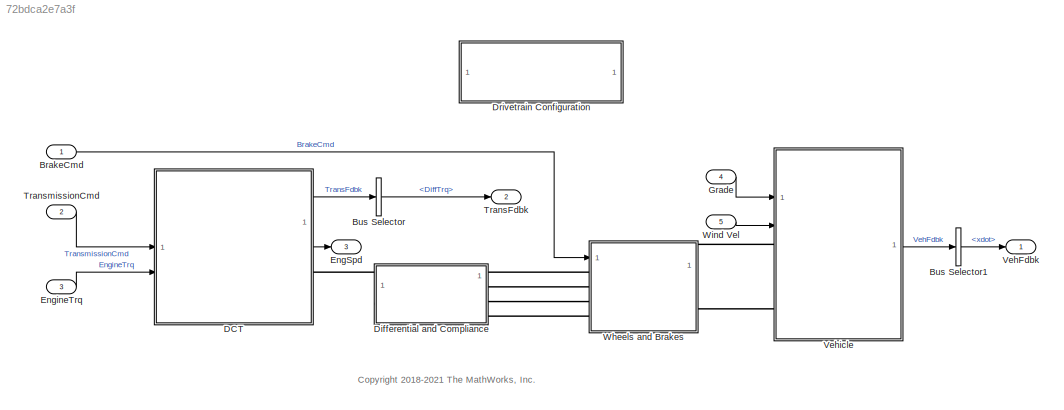
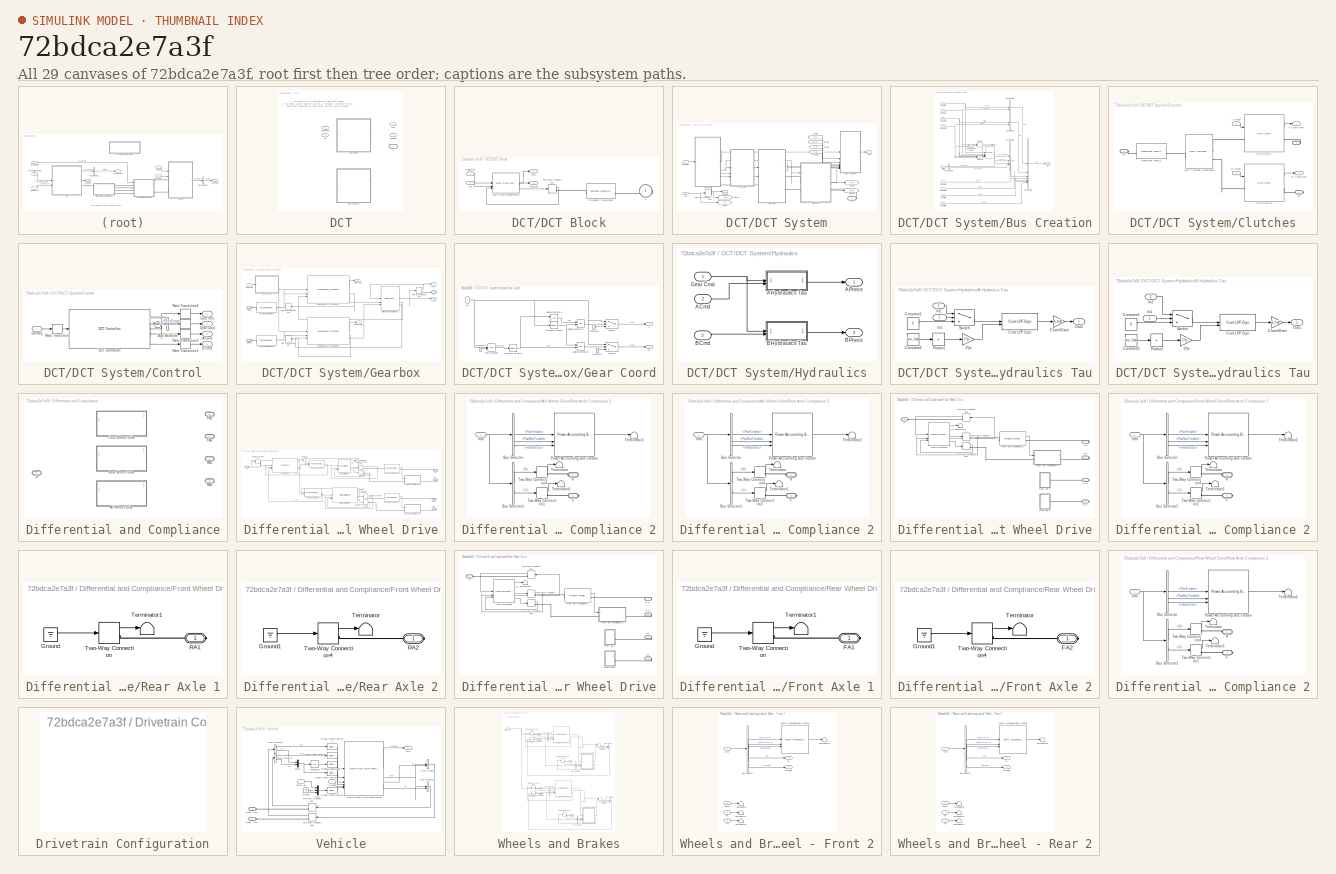
[diagram: thumbnail index - all 29 canvases of the model, root first then tree order]
MODEL slx_72bdca2e7a3f
KIND model
CONFIG AbsTol = auto
CONFIG EnableMultiTasking = on
CONFIG FixedStep = auto
CONFIG MaxStep = auto
CONFIG MinStep = auto
CONFIG RelTol = 1e-3
CONFIG SampleTimeConstraint = Unconstrained
CONFIG SolverName = ode23tb
CONFIG StartTime = 0.0
CONFIG StopTime = 50
WORKSPACE source: mxarray member
WORKSPACE N: Simulink.Parameter (value not decoded)
WORKSPACE NF: Simulink.Parameter (value not decoded)
WORKSPACE NR: Simulink.Parameter (value not decoded)
WORKSPACE Ndiff: Simulink.Parameter (value not decoded)
WORKSPACE RWheel: Simulink.Parameter (value not decoded)
WORKSPACE b_axle: Simulink.Parameter (value not decoded)
WORKSPACE b_driveshaft: Simulink.Parameter (value not decoded)
WORKSPACE dt_DCT: Simulink.Parameter (value not decoded)
WORKSPACE k_axle: Simulink.Parameter (value not decoded)
WORKSPACE k_driveshaft: Simulink.Parameter (value not decoded)
WORKSPACE k_hyd: Simulink.Parameter (value not decoded)
WORKSPACE tau_hyd: Simulink.Parameter (value not decoded)
WORKSPACE wc_shaft: Simulink.Parameter (value not decoded)
BLOCK [Inport] BrakeCmd
BLOCK [BusSelector] Bus Selector
  OutputSignals = Diff.DiffTrq
BLOCK [BusSelector] Bus Selector1
  OutputSignals = BdyFrm.Cg.Vel.xdot
BLOCK [SubSystem] DCT
  LabelModeActiveChoice = 0
  Variant = on
  VariantControlMode = label
BLOCK [SubSystem] DCT/DCT Block
  MinAlgLoopOccurrences = on
  VariantControl = 0
BLOCK [Reference] DCT/DCT Block/Driveshaft Compliance  REF=autolibsharedcoupling/Torsional Compliance
  LibrarySourceBlock = autolibcoupling/Torsional Compliance
  SourceBlock = autolibsharedcoupling/Torsional Compliance
  SourceType = Torsional Compliance
BLOCK [Reference] DCT/DCT Block/Dual Clutch Transmission  REF=autolibtransdct/Dual Clutch Transmission
  SourceBlock = autolibtransdct/Dual Clutch Transmission
  SourceType = Dual Clutch Transmission
BLOCK [Outport] DCT/DCT Block/EngSpd
  Port = 2
  VectorParamsAs1DForOutWhenUnconnected = off
BLOCK [Inport] DCT/DCT Block/GearReq
BLOCK [Outport] DCT/DCT Block/Info
  VectorParamsAs1DForOutWhenUnconnected = off
BLOCK [PMIOPort] DCT/DCT Block/T
  Side = Right
BLOCK [Inport] DCT/DCT Block/Tin
  Port = 2
BLOCK [TwoWayConnection] DCT/DCT Block/Two-Way Connection2
BLOCK [SubSystem] DCT/DCT System
  MinAlgLoopOccurrences = on
  VariantControl = 1
BLOCK [SubSystem] DCT/DCT System/Bus Creation
BLOCK [Inport] DCT/DCT System/Bus Creation/A Clutch Info
  Port = 6
BLOCK [Inport] DCT/DCT System/Bus Creation/A Gear Info
  Port = 8
BLOCK [Inport] DCT/DCT System/Bus Creation/B Clutch Info
  Port = 7
BLOCK [Inport] DCT/DCT System/Bus Creation/B Gear Info
  Port = 9
BLOCK [BusCreator] DCT/DCT System/Bus Creation/Bus Creator3
  DisplayOption = bar
  InheritFromInputs = on
  Inputs = 7
BLOCK [BusCreator] DCT/DCT System/Bus Creation/Bus Creator5
  DisplayOption = bar
  InheritFromInputs = on
  Inputs = 2
BLOCK [BusCreator] DCT/DCT System/Bus Creation/Bus Creator6
  DisplayOption = bar
  InheritFromInputs = on
  Inputs = 2
BLOCK [BusCreator] DCT/DCT System/Bus Creation/Bus Creator8
  DisplayOption = bar
  InheritFromInputs = on
  Inputs = 4
BLOCK [BusSelector] DCT/DCT System/Bus Creation/Bus Selector
  OutputSignals = GearReq,GearEngd
BLOCK [Inport] DCT/DCT System/Bus Creation/Cntrl Info
BLOCK [Outport] DCT/DCT System/Bus Creation/Info
  VectorParamsAs1DForOutWhenUnconnected = off
BLOCK [Inport] DCT/DCT System/Bus Creation/Input Spd
  Port = 2
  Unit = rad/s
BLOCK [Inport] DCT/DCT System/Bus Creation/Input Trq
  Port = 4
  Unit = N*m
BLOCK [Reference] DCT/DCT System/Bus Creation/Mechanical Efficiency  REF=autolibshareddrivetraincommon/Mechanical Efficiency
  SourceBlock = autolibshareddrivetraincommon/Mechanical Efficiency
  SourceType = Mechanical Efficiency
BLOCK [Inport] DCT/DCT System/Bus Creation/Output Spd
  Port = 3
  Unit = rad/s
BLOCK [Inport] DCT/DCT System/Bus Creation/Output Trq
  Port = 5
  Unit = N*m
BLOCK [Product] DCT/DCT System/Bus Creation/Product1
  Inputs = **
BLOCK [Product] DCT/DCT System/Bus Creation/Product3
  Inputs = */
BLOCK [Reference] DCT/DCT System/Bus Creation/div0protect - abs poly1  REF=autolibutils/div0protect - abs poly
  SourceBlock = autolibutils/div0protect - abs poly
BLOCK [SubSystem] DCT/DCT System/Clutches
BLOCK [PMIOPort] DCT/DCT System/Clutches/A
  Side = Right
BLOCK [Outport] DCT/DCT System/Clutches/A Clutch Info
  VectorParamsAs1DForOutWhenUnconnected = off
BLOCK [Inport] DCT/DCT System/Clutches/A Press
BLOCK [PMIOPort] DCT/DCT System/Clutches/B
  Port = 3
  Side = Right
BLOCK [Outport] DCT/DCT System/Clutches/B Clutch Info
  Port = 2
  VectorParamsAs1DForOutWhenUnconnected = off
BLOCK [Inport] DCT/DCT System/Clutches/B Press
  Port = 2
BLOCK [Reference] DCT/DCT System/Clutches/Disc Clutch A  REF=autolibcoupling/Disc Clutch
  SourceBlock = autolibcoupling/Disc Clutch
  SourceType = Disc Clutch
BLOCK [Reference] DCT/DCT System/Clutches/Disc Clutch B  REF=autolibcoupling/Disc Clutch
  SourceBlock = autolibcoupling/Disc Clutch
  SourceType = Disc Clutch
BLOCK [PMIOPort] DCT/DCT System/Clutches/E
  Port = 2
  Side = Left
BLOCK [Reference] DCT/DCT System/Clutches/Rotational Inertia  REF=autolibsharedcoupling/Rotational Inertia
  LibrarySourceBlock = autolibcoupling/Rotational Inertia
  SourceBlock = autolibsharedcoupling/Rotational Inertia
  SourceType = Rotational Inertia
BLOCK [Reference] DCT/DCT System/Clutches/Split Torsional Compliance  REF=autolibsharedcoupling/Split Torsional Compliance
  LibrarySourceBlock = autolibcoupling/Split Torsional Compliance
  SourceBlock = autolibsharedcoupling/Split Torsional Compliance
  SourceType = Split Torsional Compliance
BLOCK [SubSystem] DCT/DCT System/Control
BLOCK [Outport] DCT/DCT System/Control/A Cmd
  Port = 3
  VectorParamsAs1DForOutWhenUnconnected = off
BLOCK [Outport] DCT/DCT System/Control/B Cmd
  Port = 4
  VectorParamsAs1DForOutWhenUnconnected = off
BLOCK [BusSelector] DCT/DCT System/Control/Bus Selector
  OutputSignals = GearEngd
BLOCK [Outport] DCT/DCT System/Control/Cntrl Info
  VectorParamsAs1DForOutWhenUnconnected = off
BLOCK [Reference] DCT/DCT System/Control/DCT Controller  REF=autolibtranscontrols/DCT Controller
  SourceBlock = autolibtranscontrols/DCT Controller
  SourceType = DCT Controller
BLOCK [Outport] DCT/DCT System/Control/Gear Cmd
  Port = 2
  VectorParamsAs1DForOutWhenUnconnected = off
BLOCK [Inport] DCT/DCT System/Control/GerReq
BLOCK [RateTransition] DCT/DCT System/Control/Rate Transition
  Deterministic = off
BLOCK [RateTransition] DCT/DCT System/Control/Rate Transition1
BLOCK [RateTransition] DCT/DCT System/Control/Rate Transition2
BLOCK [RateTransition] DCT/DCT System/Control/Rate Transition3
BLOCK [RateTransition] DCT/DCT System/Control/Rate Transition4
BLOCK [Terminator] DCT/DCT System/Control/Terminator
BLOCK [Outport] DCT/DCT System/EngSpd
  NameLocation = top
  Port = 2
  Unit = rad/s
  VectorParamsAs1DForOutWhenUnconnected = off
BLOCK [From] DCT/DCT System/From12
  GotoTag = T_out
BLOCK [From] DCT/DCT System/From6
  GotoTag = T_in
BLOCK [From] DCT/DCT System/From8
  GotoTag = w_in
BLOCK [From] DCT/DCT System/From9
  GotoTag = w_out
BLOCK [Inport] DCT/DCT System/GearReq
BLOCK [SubSystem] DCT/DCT System/Gearbox
BLOCK [PMIOPort] DCT/DCT System/Gearbox/A Clutch
  Side = Left
BLOCK [Outport] DCT/DCT System/Gearbox/A Gears Info
  VectorParamsAs1DForOutWhenUnconnected = off
BLOCK [PMIOPort] DCT/DCT System/Gearbox/B Clutch
  Port = 2
  Side = Left
BLOCK [Outport] DCT/DCT System/Gearbox/B Gears Info
  Port = 2
  VectorParamsAs1DForOutWhenUnconnected = off
BLOCK [Inport] DCT/DCT System/Gearbox/Gear Cmd
BLOCK [SubSystem] DCT/DCT System/Gearbox/Gear Coord
BLOCK [Outport] DCT/DCT System/Gearbox/Gear Coord/A
  VectorParamsAs1DForOutWhenUnconnected = off
BLOCK [Outport] DCT/DCT System/Gearbox/Gear Coord/B
  Port = 2
  VectorParamsAs1DForOutWhenUnconnected = off
BLOCK [Reference] DCT/DCT System/Gearbox/Gear Coord/Compare To Zero  REF=simulink/Logic and Bit
Operations/Compare
To Zero
  SourceBlock = simulink/Logic and Bit\nOperations/Compare\nTo Zero
  SourceType = Compare To Zero
BLOCK [Reference] DCT/DCT System/Gearbox/Gear Coord/Compare To Zero1  REF=simulink/Logic and Bit
Operations/Compare
To Zero
  SourceBlock = simulink/Logic and Bit\nOperations/Compare\nTo Zero
  SourceType = Compare To Zero
BLOCK [Constant] DCT/DCT System/Gearbox/Gear Coord/Constant1
  Value = 2
BLOCK [Constant] DCT/DCT System/Gearbox/Gear Coord/Constant3
  Value = 0
BLOCK [Constant] DCT/DCT System/Gearbox/Gear Coord/Constant4
  Value = 0
BLOCK [Inport] DCT/DCT System/Gearbox/Gear Coord/In1
BLOCK [Logic] DCT/DCT System/Gearbox/Gear Coord/Logical Operator1
  AllPortsSameDT = off
  Operator = NOT
  OutDataTypeStr = boolean
BLOCK [Logic] DCT/DCT System/Gearbox/Gear Coord/Logical Operator2
  AllPortsSameDT = off
  OutDataTypeStr = boolean
BLOCK [Logic] DCT/DCT System/Gearbox/Gear Coord/Logical Operator3
  AllPortsSameDT = off
  OutDataTypeStr = boolean
BLOCK [Math] DCT/DCT System/Gearbox/Gear Coord/Math Function
  Operator = mod
  SignedPower = on
BLOCK [Switch] DCT/DCT System/Gearbox/Gear Coord/Switch
  Criteria = u2 > Threshold
  InputSameDT = off
  SaturateOnIntegerOverflow = off
  Threshold = .5
BLOCK [Switch] DCT/DCT System/Gearbox/Gear Coord/Switch1
  Criteria = u2 > Threshold
  InputSameDT = off
  SaturateOnIntegerOverflow = off
  Threshold = .5
BLOCK [Reference] DCT/DCT System/Gearbox/Ideal Fixed Gear Transmission A  REF=autolibsharedtransfixedgear/Ideal Fixed Gear Transmission
  SourceBlock = autolibsharedtransfixedgear/Ideal Fixed Gear Transmission
  SourceType = Ideal Fixed Gear Transmission
BLOCK [Reference] DCT/DCT System/Gearbox/Ideal Fixed Gear Transmission B  REF=autolibsharedtransfixedgear/Ideal Fixed Gear Transmission
  SourceBlock = autolibsharedtransfixedgear/Ideal Fixed Gear Transmission
  SourceType = Ideal Fixed Gear Transmission
BLOCK [Reference] DCT/DCT System/Gearbox/Split Torsional Compliance  REF=autolibsharedcoupling/Split Torsional Compliance
  LibrarySourceBlock = autolibcoupling/Split Torsional Compliance
  SourceBlock = autolibsharedcoupling/Split Torsional Compliance
  SourceType = Split Torsional Compliance
BLOCK [PMIOPort] DCT/DCT System/Gearbox/T
  Port = 3
  Side = Right
BLOCK [Outport] DCT/DCT System/Gearbox/T_Out
  Port = 3
  VectorParamsAs1DForOutWhenUnconnected = off
BLOCK [Reference] DCT/DCT System/Gearbox/Torsional Compliance  REF=autolibsharedcoupling/Torsional Compliance
  LibrarySourceBlock = autolibcoupling/Torsional Compliance
  SourceBlock = autolibsharedcoupling/Torsional Compliance
  SourceType = Torsional Compliance
BLOCK [Reference] DCT/DCT System/Gearbox/Torsional Compliance1  REF=autolibsharedcoupling/Torsional Compliance
  LibrarySourceBlock = autolibcoupling/Torsional Compliance
  SourceBlock = autolibsharedcoupling/Torsional Compliance
  SourceType = Torsional Compliance
BLOCK [TwoWayConnection] DCT/DCT System/Gearbox/Two-Way Connection2
BLOCK [TwoWayConnection] DCT/DCT System/Gearbox/Two-Way Connection3
BLOCK [TwoWayConnection] DCT/DCT System/Gearbox/Two-Way Connection4
BLOCK [Outport] DCT/DCT System/Gearbox/w_Out
  Port = 4
  VectorParamsAs1DForOutWhenUnconnected = off
BLOCK [Goto] DCT/DCT System/Goto
  GotoTag = T_in
BLOCK [Goto] DCT/DCT System/Goto1
  GotoTag = w_in
BLOCK [Goto] DCT/DCT System/Goto2
  GotoTag = T_out
BLOCK [Goto] DCT/DCT System/Goto3
  GotoTag = w_out
BLOCK [SubSystem] DCT/DCT System/Hydraulics
BLOCK [Inport] DCT/DCT System/Hydraulics/A Cmd
  Port = 2
BLOCK [SubSystem] DCT/DCT System/Hydraulics/A Hydraulics Tau
BLOCK [Gain] DCT/DCT System/Hydraulics/A Hydraulics Tau/2*pi
  Gain = 2*pi
BLOCK [Gain] DCT/DCT System/Hydraulics/A Hydraulics Tau/ClutchGain
  Gain = k_hyd
BLOCK [Constant] DCT/DCT System/Hydraulics/A Hydraulics Tau/Constant1
  Value = 0
BLOCK [Constant] DCT/DCT System/Hydraulics/A Hydraulics Tau/Constant2
  Value = tau_hyd
BLOCK [Reference] DCT/DCT System/Hydraulics/A Hydraulics Tau/Cont LPF Dyn  REF=autolibutils/Cont LPF Dyn
  SourceBlock = autolibutils/Cont LPF Dyn
BLOCK [Inport] DCT/DCT System/Hydraulics/A Hydraulics Tau/In1
  NameLocation = top
BLOCK [Inport] DCT/DCT System/Hydraulics/A Hydraulics Tau/In2
  NameLocation = top
  Port = 2
BLOCK [Outport] DCT/DCT System/Hydraulics/A Hydraulics Tau/Out1
  VectorParamsAs1DForOutWhenUnconnected = off
BLOCK [Product] DCT/DCT System/Hydraulics/A Hydraulics Tau/Product
  Inputs = /
BLOCK [Switch] DCT/DCT System/Hydraulics/A Hydraulics Tau/Switch
  Criteria = u2 ~= 0
  InputSameDT = off
  SaturateOnIntegerOverflow = off
BLOCK [Outport] DCT/DCT System/Hydraulics/A Press
  VectorParamsAs1DForOutWhenUnconnected = off
BLOCK [Inport] DCT/DCT System/Hydraulics/B Cmd
  Port = 3
BLOCK [SubSystem] DCT/DCT System/Hydraulics/B Hydraulics Tau
BLOCK [Gain] DCT/DCT System/Hydraulics/B Hydraulics Tau/2*pi
  Gain = 2*pi
BLOCK [Gain] DCT/DCT System/Hydraulics/B Hydraulics Tau/ClutchGain
  Gain = k_hyd
BLOCK [Constant] DCT/DCT System/Hydraulics/B Hydraulics Tau/Constant1
  Value = 0
BLOCK [Constant] DCT/DCT System/Hydraulics/B Hydraulics Tau/Constant2
  Value = tau_hyd
BLOCK [Reference] DCT/DCT System/Hydraulics/B Hydraulics Tau/Cont LPF Dyn  REF=autolibutils/Cont LPF Dyn
  SourceBlock = autolibutils/Cont LPF Dyn
BLOCK [Inport] DCT/DCT System/Hydraulics/B Hydraulics Tau/In1
  NameLocation = top
BLOCK [Inport] DCT/DCT System/Hydraulics/B Hydraulics Tau/In2
  Port = 2
BLOCK [Outport] DCT/DCT System/Hydraulics/B Hydraulics Tau/Out1
  VectorParamsAs1DForOutWhenUnconnected = off
BLOCK [Product] DCT/DCT System/Hydraulics/B Hydraulics Tau/Product
  Inputs = /
BLOCK [Switch] DCT/DCT System/Hydraulics/B Hydraulics Tau/Switch
  Criteria = u2 ~= 0
  InputSameDT = off
  SaturateOnIntegerOverflow = off
BLOCK [Outport] DCT/DCT System/Hydraulics/B Press
  Port = 2
  VectorParamsAs1DForOutWhenUnconnected = off
BLOCK [Inport] DCT/DCT System/Hydraulics/Gear Cmd
BLOCK [Outport] DCT/DCT System/Info
  VectorParamsAs1DForOutWhenUnconnected = off
BLOCK [PMIOPort] DCT/DCT System/T
  Side = Right
BLOCK [Inport] DCT/DCT System/Tin
  Port = 2
  Unit = N*m
BLOCK [TwoWayConnection] DCT/DCT System/Two-Way Connection1
BLOCK [Outport] DCT/EngSpd
  Port = 2
  VectorParamsAs1DForOutWhenUnconnected = off
BLOCK [Inport] DCT/GearReq
BLOCK [Outport] DCT/Info
  VectorParamsAs1DForOutWhenUnconnected = off
BLOCK [PMIOPort] DCT/T
  Side = Right
BLOCK [Inport] DCT/Tin
  Port = 2
BLOCK [SubSystem] Differential and Compliance
  LabelModeActiveChoice = 0
  Variant = on
  VariantControlMode = label
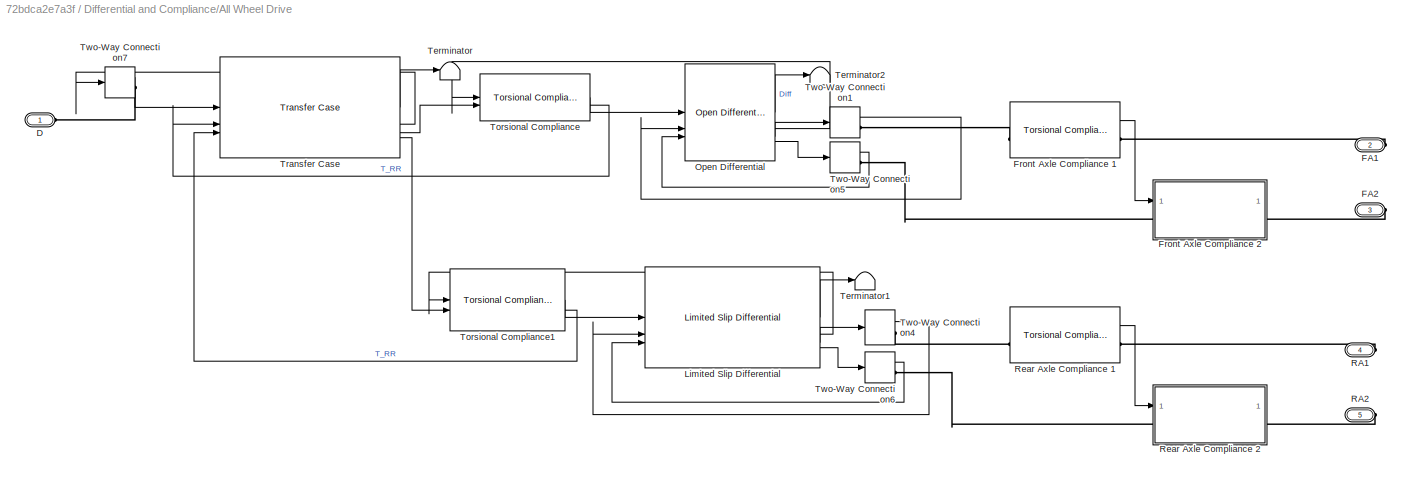
BLOCK [SubSystem] Differential and Compliance/All Wheel Drive
  VariantControl = 2
BLOCK [PMIOPort] Differential and Compliance/All Wheel Drive/D
  Side = Left
BLOCK [PMIOPort] Differential and Compliance/All Wheel Drive/FA1
  Port = 2
  Side = Right
BLOCK [PMIOPort] Differential and Compliance/All Wheel Drive/FA2
  Port = 3
  Side = Right
BLOCK [Reference] Differential and Compliance/All Wheel Drive/Front Axle Compliance 1  REF=autolibsharedcoupling/Torsional Compliance
  LibrarySourceBlock = autolibcoupling/Torsional Compliance
  SourceBlock = autolibsharedcoupling/Torsional Compliance
  SourceType = Torsional Compliance
BLOCK [SubSystem] Differential and Compliance/All Wheel Drive/Front Axle Compliance 2
BLOCK [BusSelector] Differential and Compliance/All Wheel Drive/Front Axle Compliance 2/Bus Selector
  OutputSignals = PwrInfo.PwrTrnsfrd,PwrInfo.PwrNotTrnsfrd,PwrInfo.PwrStored
BLOCK [BusSelector] Differential and Compliance/All Wheel Drive/Front Axle Compliance 2/Bus Selector1
  OutputSignals = Trq.R,Trq.C
BLOCK [PMIOPort] Differential and Compliance/All Wheel Drive/Front Axle Compliance 2/C
  Port = 2
  Side = Right
BLOCK [Inport] Differential and Compliance/All Wheel Drive/Front Axle Compliance 2/Info
BLOCK [Reference] Differential and Compliance/All Wheel Drive/Front Axle Compliance 2/Power Accounting Bus Creator  REF=autolibpowerinfoutils/Power Accounting Bus Creator
  SourceBlock = autolibpowerinfoutils/Power Accounting Bus Creator
  SourceType = Power Accounting Bus Creator
BLOCK [PMIOPort] Differential and Compliance/All Wheel Drive/Front Axle Compliance 2/R
  Side = Left
BLOCK [Terminator] Differential and Compliance/All Wheel Drive/Front Axle Compliance 2/Terminator
BLOCK [Terminator] Differential and Compliance/All Wheel Drive/Front Axle Compliance 2/Terminator1
BLOCK [Terminator] Differential and Compliance/All Wheel Drive/Front Axle Compliance 2/Terminator2
BLOCK [TwoWayConnection] Differential and Compliance/All Wheel Drive/Front Axle Compliance 2/Two-Way Connection1
BLOCK [TwoWayConnection] Differential and Compliance/All Wheel Drive/Front Axle Compliance 2/Two-Way Connection4
BLOCK [Reference] Differential and Compliance/All Wheel Drive/Limited Slip Differential  REF=autolibshareddiff/Limited Slip Differential
  LibrarySourceBlock = autolibdiff/Limited Slip Differential
  SourceBlock = autolibshareddiff/Limited Slip Differential
  SourceType = Limited Slip Differential
BLOCK [Reference] Differential and Compliance/All Wheel Drive/Open Differential  REF=autolibshareddiff/Open Differential
  LibrarySourceBlock = autolibdiff/Open Differential
  SourceBlock = autolibshareddiff/Open Differential
  SourceType = Open Differential
BLOCK [PMIOPort] Differential and Compliance/All Wheel Drive/RA1
  Port = 4
  Side = Right
BLOCK [PMIOPort] Differential and Compliance/All Wheel Drive/RA2
  Port = 5
  Side = Right
BLOCK [Reference] Differential and Compliance/All Wheel Drive/Rear Axle Compliance 1  REF=autolibsharedcoupling/Torsional Compliance
  LibrarySourceBlock = autolibcoupling/Torsional Compliance
  SourceBlock = autolibsharedcoupling/Torsional Compliance
  SourceType = Torsional Compliance
BLOCK [SubSystem] Differential and Compliance/All Wheel Drive/Rear Axle Compliance 2
BLOCK [BusSelector] Differential and Compliance/All Wheel Drive/Rear Axle Compliance 2/Bus Selector
  OutputSignals = PwrInfo.PwrTrnsfrd,PwrInfo.PwrNotTrnsfrd,PwrInfo.PwrStored
BLOCK [BusSelector] Differential and Compliance/All Wheel Drive/Rear Axle Compliance 2/Bus Selector1
  OutputSignals = Trq.R,Trq.C
BLOCK [PMIOPort] Differential and Compliance/All Wheel Drive/Rear Axle Compliance 2/C
  Port = 2
  Side = Right
BLOCK [Inport] Differential and Compliance/All Wheel Drive/Rear Axle Compliance 2/Info
BLOCK [Reference] Differential and Compliance/All Wheel Drive/Rear Axle Compliance 2/Power Accounting Bus Creator  REF=autolibpowerinfoutils/Power Accounting Bus Creator
  SourceBlock = autolibpowerinfoutils/Power Accounting Bus Creator
  SourceType = Power Accounting Bus Creator
BLOCK [PMIOPort] Differential and Compliance/All Wheel Drive/Rear Axle Compliance 2/R
  Side = Left
BLOCK [Terminator] Differential and Compliance/All Wheel Drive/Rear Axle Compliance 2/Terminator
BLOCK [Terminator] Differential and Compliance/All Wheel Drive/Rear Axle Compliance 2/Terminator1
BLOCK [Terminator] Differential and Compliance/All Wheel Drive/Rear Axle Compliance 2/Terminator2
BLOCK [TwoWayConnection] Differential and Compliance/All Wheel Drive/Rear Axle Compliance 2/Two-Way Connection1
BLOCK [TwoWayConnection] Differential and Compliance/All Wheel Drive/Rear Axle Compliance 2/Two-Way Connection4
BLOCK [Terminator] Differential and Compliance/All Wheel Drive/Terminator
BLOCK [Terminator] Differential and Compliance/All Wheel Drive/Terminator1
BLOCK [Terminator] Differential and Compliance/All Wheel Drive/Terminator2
BLOCK [Reference] Differential and Compliance/All Wheel Drive/Torsional Compliance  REF=autolibsharedcoupling/Torsional Compliance
  LibrarySourceBlock = autolibcoupling/Torsional Compliance
  SourceBlock = autolibsharedcoupling/Torsional Compliance
  SourceType = Torsional Compliance
BLOCK [Reference] Differential and Compliance/All Wheel Drive/Torsional Compliance1  REF=autolibsharedcoupling/Torsional Compliance
  LibrarySourceBlock = autolibcoupling/Torsional Compliance
  SourceBlock = autolibsharedcoupling/Torsional Compliance
  SourceType = Torsional Compliance
BLOCK [Reference] Differential and Compliance/All Wheel Drive/Transfer Case  REF=autolibshareddiff/Transfer Case
  LibrarySourceBlock = autolibdiff/Transfer Case
  SourceBlock = autolibshareddiff/Transfer Case
  SourceType = Transfer Case
BLOCK [TwoWayConnection] Differential and Compliance/All Wheel Drive/Two-Way Connection1
BLOCK [TwoWayConnection] Differential and Compliance/All Wheel Drive/Two-Way Connection4
  NameLocation = top
BLOCK [TwoWayConnection] Differential and Compliance/All Wheel Drive/Two-Way Connection5
BLOCK [TwoWayConnection] Differential and Compliance/All Wheel Drive/Two-Way Connection6
BLOCK [TwoWayConnection] Differential and Compliance/All Wheel Drive/Two-Way Connection7
BLOCK [PMIOPort] Differential and Compliance/D
  Side = Left
BLOCK [PMIOPort] Differential and Compliance/FA1
  Port = 2
  Side = Right
BLOCK [PMIOPort] Differential and Compliance/FA2
  Port = 3
  Side = Right
BLOCK [SubSystem] Differential and Compliance/Front Wheel Drive
  VariantControl = 0
BLOCK [PMIOPort] Differential and Compliance/Front Wheel Drive/D
  Side = Left
BLOCK [PMIOPort] Differential and Compliance/Front Wheel Drive/FA1
  Port = 2
  Side = Right
BLOCK [PMIOPort] Differential and Compliance/Front Wheel Drive/FA2
  Port = 3
  Side = Right
BLOCK [Reference] Differential and Compliance/Front Wheel Drive/Front Axle Compliance 1  REF=autolibsharedcoupling/Torsional Compliance
  LibrarySourceBlock = autolibcoupling/Torsional Compliance
  SourceBlock = autolibsharedcoupling/Torsional Compliance
  SourceType = Torsional Compliance
BLOCK [SubSystem] Differential and Compliance/Front Wheel Drive/Front Axle Compliance 2
BLOCK [BusSelector] Differential and Compliance/Front Wheel Drive/Front Axle Compliance 2/Bus Selector
  OutputSignals = PwrInfo.PwrTrnsfrd,PwrInfo.PwrNotTrnsfrd,PwrInfo.PwrStored
BLOCK [BusSelector] Differential and Compliance/Front Wheel Drive/Front Axle Compliance 2/Bus Selector1
  OutputSignals = Trq.R,Trq.C
BLOCK [PMIOPort] Differential and Compliance/Front Wheel Drive/Front Axle Compliance 2/C
  Port = 2
  Side = Right
BLOCK [Inport] Differential and Compliance/Front Wheel Drive/Front Axle Compliance 2/Info
BLOCK [Reference] Differential and Compliance/Front Wheel Drive/Front Axle Compliance 2/Power Accounting Bus Creator  REF=autolibpowerinfoutils/Power Accounting Bus Creator
  SourceBlock = autolibpowerinfoutils/Power Accounting Bus Creator
  SourceType = Power Accounting Bus Creator
BLOCK [PMIOPort] Differential and Compliance/Front Wheel Drive/Front Axle Compliance 2/R
  Side = Left
BLOCK [Terminator] Differential and Compliance/Front Wheel Drive/Front Axle Compliance 2/Terminator
BLOCK [Terminator] Differential and Compliance/Front Wheel Drive/Front Axle Compliance 2/Terminator1
BLOCK [Terminator] Differential and Compliance/Front Wheel Drive/Front Axle Compliance 2/Terminator2
BLOCK [TwoWayConnection] Differential and Compliance/Front Wheel Drive/Front Axle Compliance 2/Two-Way Connection1
BLOCK [TwoWayConnection] Differential and Compliance/Front Wheel Drive/Front Axle Compliance 2/Two-Way Connection4
BLOCK [Reference] Differential and Compliance/Front Wheel Drive/Open Differential  REF=autolibshareddiff/Open Differential
  LibrarySourceBlock = autolibdiff/Open Differential
  SourceBlock = autolibshareddiff/Open Differential
  SourceType = Open Differential
BLOCK [PMIOPort] Differential and Compliance/Front Wheel Drive/RA1
  Port = 4
  Side = Right
BLOCK [PMIOPort] Differential and Compliance/Front Wheel Drive/RA2
  Port = 5
  Side = Right
BLOCK [SubSystem] Differential and Compliance/Front Wheel Drive/Rear Axle 1
BLOCK [Ground] Differential and Compliance/Front Wheel Drive/Rear Axle 1/Ground
BLOCK [PMIOPort] Differential and Compliance/Front Wheel Drive/Rear Axle 1/RA1
  Side = Right
BLOCK [Terminator] Differential and Compliance/Front Wheel Drive/Rear Axle 1/Terminator1
BLOCK [TwoWayConnection] Differential and Compliance/Front Wheel Drive/Rear Axle 1/Two-Way Connection
BLOCK [SubSystem] Differential and Compliance/Front Wheel Drive/Rear Axle 2
BLOCK [Ground] Differential and Compliance/Front Wheel Drive/Rear Axle 2/Ground1
BLOCK [PMIOPort] Differential and Compliance/Front Wheel Drive/Rear Axle 2/RA2
  Side = Right
BLOCK [Terminator] Differential and Compliance/Front Wheel Drive/Rear Axle 2/Terminator
BLOCK [TwoWayConnection] Differential and Compliance/Front Wheel Drive/Rear Axle 2/Two-Way Connection4
BLOCK [Terminator] Differential and Compliance/Front Wheel Drive/Terminator6
BLOCK [TwoWayConnection] Differential and Compliance/Front Wheel Drive/Two-Way Connection1
BLOCK [TwoWayConnection] Differential and Compliance/Front Wheel Drive/Two-Way Connection2
BLOCK [TwoWayConnection] Differential and Compliance/Front Wheel Drive/Two-Way Connection3
BLOCK [PMIOPort] Differential and Compliance/RA1
  Port = 4
  Side = Right
BLOCK [PMIOPort] Differential and Compliance/RA2
  Port = 5
  Side = Right
BLOCK [SubSystem] Differential and Compliance/Rear Wheel Drive
  VariantControl = 1
BLOCK [PMIOPort] Differential and Compliance/Rear Wheel Drive/D
  Side = Left
BLOCK [PMIOPort] Differential and Compliance/Rear Wheel Drive/FA1
  Port = 2
  Side = Right
BLOCK [PMIOPort] Differential and Compliance/Rear Wheel Drive/FA2
  Port = 3
  Side = Right
BLOCK [SubSystem] Differential and Compliance/Rear Wheel Drive/Front Axle 1
BLOCK [PMIOPort] Differential and Compliance/Rear Wheel Drive/Front Axle 1/FA1
  Side = Right
BLOCK [Ground] Differential and Compliance/Rear Wheel Drive/Front Axle 1/Ground
BLOCK [Terminator] Differential and Compliance/Rear Wheel Drive/Front Axle 1/Terminator1
BLOCK [TwoWayConnection] Differential and Compliance/Rear Wheel Drive/Front Axle 1/Two-Way Connection
BLOCK [SubSystem] Differential and Compliance/Rear Wheel Drive/Front Axle 2
BLOCK [PMIOPort] Differential and Compliance/Rear Wheel Drive/Front Axle 2/FA2
  Side = Right
BLOCK [Ground] Differential and Compliance/Rear Wheel Drive/Front Axle 2/Ground1
BLOCK [Terminator] Differential and Compliance/Rear Wheel Drive/Front Axle 2/Terminator
BLOCK [TwoWayConnection] Differential and Compliance/Rear Wheel Drive/Front Axle 2/Two-Way Connection4
BLOCK [Reference] Differential and Compliance/Rear Wheel Drive/Open Differential  REF=autolibshareddiff/Open Differential
  LibrarySourceBlock = autolibdiff/Open Differential
  SourceBlock = autolibshareddiff/Open Differential
  SourceType = Open Differential
BLOCK [PMIOPort] Differential and Compliance/Rear Wheel Drive/RA1
  Port = 4
  Side = Right
BLOCK [PMIOPort] Differential and Compliance/Rear Wheel Drive/RA2
  Port = 5
  Side = Right
BLOCK [Reference] Differential and Compliance/Rear Wheel Drive/Rear Axle Compliance 1  REF=autolibsharedcoupling/Torsional Compliance
  LibrarySourceBlock = autolibcoupling/Torsional Compliance
  SourceBlock = autolibsharedcoupling/Torsional Compliance
  SourceType = Torsional Compliance
BLOCK [SubSystem] Differential and Compliance/Rear Wheel Drive/Rear Axle Compliance 2
BLOCK [BusSelector] Differential and Compliance/Rear Wheel Drive/Rear Axle Compliance 2/Bus Selector
  OutputSignals = PwrInfo.PwrTrnsfrd,PwrInfo.PwrNotTrnsfrd,PwrInfo.PwrStored
BLOCK [BusSelector] Differential and Compliance/Rear Wheel Drive/Rear Axle Compliance 2/Bus Selector1
  OutputSignals = Trq.R,Trq.C
BLOCK [PMIOPort] Differential and Compliance/Rear Wheel Drive/Rear Axle Compliance 2/C
  Port = 2
  Side = Right
BLOCK [Inport] Differential and Compliance/Rear Wheel Drive/Rear Axle Compliance 2/Info
BLOCK [Reference] Differential and Compliance/Rear Wheel Drive/Rear Axle Compliance 2/Power Accounting Bus Creator  REF=autolibpowerinfoutils/Power Accounting Bus Creator
  SourceBlock = autolibpowerinfoutils/Power Accounting Bus Creator
  SourceType = Power Accounting Bus Creator
BLOCK [PMIOPort] Differential and Compliance/Rear Wheel Drive/Rear Axle Compliance 2/R
  Side = Left
BLOCK [Terminator] Differential and Compliance/Rear Wheel Drive/Rear Axle Compliance 2/Terminator
BLOCK [Terminator] Differential and Compliance/Rear Wheel Drive/Rear Axle Compliance 2/Terminator1
BLOCK [Terminator] Differential and Compliance/Rear Wheel Drive/Rear Axle Compliance 2/Terminator2
BLOCK [TwoWayConnection] Differential and Compliance/Rear Wheel Drive/Rear Axle Compliance 2/Two-Way Connection1
BLOCK [TwoWayConnection] Differential and Compliance/Rear Wheel Drive/Rear Axle Compliance 2/Two-Way Connection4
BLOCK [Terminator] Differential and Compliance/Rear Wheel Drive/Terminator6
BLOCK [TwoWayConnection] Differential and Compliance/Rear Wheel Drive/Two-Way Connection1
BLOCK [TwoWayConnection] Differential and Compliance/Rear Wheel Drive/Two-Way Connection2
BLOCK [TwoWayConnection] Differential and Compliance/Rear Wheel Drive/Two-Way Connection3
BLOCK [SubSystem] Drivetrain Configuration
  AttributesFormatString = Active Mode: %<drivetrainMode>
BLOCK [Outport] EngSpd
  BusOutputAsStruct = on
  Port = 3
  SignalType = real
  VarSizeSig = No
  VectorParamsAs1DForOutWhenUnconnected = off
BLOCK [Inport] EngineTrq
  Port = 3
BLOCK [Inport] Grade
  Port = 4
BLOCK [Outport] TransFdbk
  BusOutputAsStruct = on
  Port = 2
  SignalType = real
  VarSizeSig = No
  VectorParamsAs1DForOutWhenUnconnected = off
BLOCK [Inport] TransmissionCmd
  Port = 2
BLOCK [Outport] VehFdbk
  VectorParamsAs1DForOutWhenUnconnected = off
BLOCK [SubSystem] Vehicle
BLOCK [BusCreator] Vehicle/Bus Creator
  DisplayOption = bar
  InheritFromInputs = on
  Inputs = 2
BLOCK [BusCreator] Vehicle/Bus Creator1
  DisplayOption = bar
  InheritFromInputs = on
  Inputs = 2
BLOCK [BusSelector] Vehicle/Bus Selector
  OutputSignals = Fx,Fz
BLOCK [BusSelector] Vehicle/Bus Selector2
  OutputSignals = Fx,Fz
BLOCK [PMIOPort] Vehicle/Front Axle
  Side = Left
BLOCK [Inport] Vehicle/Grade
  Unit = deg
BLOCK [Ground] Vehicle/Ground
BLOCK [Outport] Vehicle/Info
  VectorParamsAs1DForOutWhenUnconnected = off
BLOCK [Integrator] Vehicle/Integrator
BLOCK [Mux] Vehicle/Mux1
  DisplayOption = bar
  Inputs = 3
BLOCK [Mux] Vehicle/Mux2
  DisplayOption = bar
  Inputs = 2
BLOCK [PMIOPort] Vehicle/Rear Axle
  Port = 2
  Side = Left
BLOCK [SignalSpecification] Vehicle/Signal Specification
  Unit = m/s
BLOCK [SignalSpecification] Vehicle/Signal Specification1
  Unit = m
BLOCK [SignalSpecification] Vehicle/Signal Specification2
  Unit = m/s
BLOCK [SignalSpecification] Vehicle/Signal Specification3
  Unit = N
BLOCK [SignalSpecification] Vehicle/Signal Specification4
  Unit = N
BLOCK [TwoWayConnection] Vehicle/Two-Way Connection1
BLOCK [TwoWayConnection] Vehicle/Two-Way Connection8
BLOCK [Reference] Vehicle/Vehicle Body 3 DOF Longitudinal  REF=autolibshared/Vehicle Body 3DOF Longitudinal
  LibrarySourceBlock = autolibvehdynlong/Vehicle Body 3DOF Longitudinal
  SourceBlock = autolibshared/Vehicle Body 3DOF Longitudinal
  SourceType = Vehicle Body 3DOF Longitudinal
BLOCK [Inport] Vehicle/Wind Vel
  Port = 2
  Unit = m/s
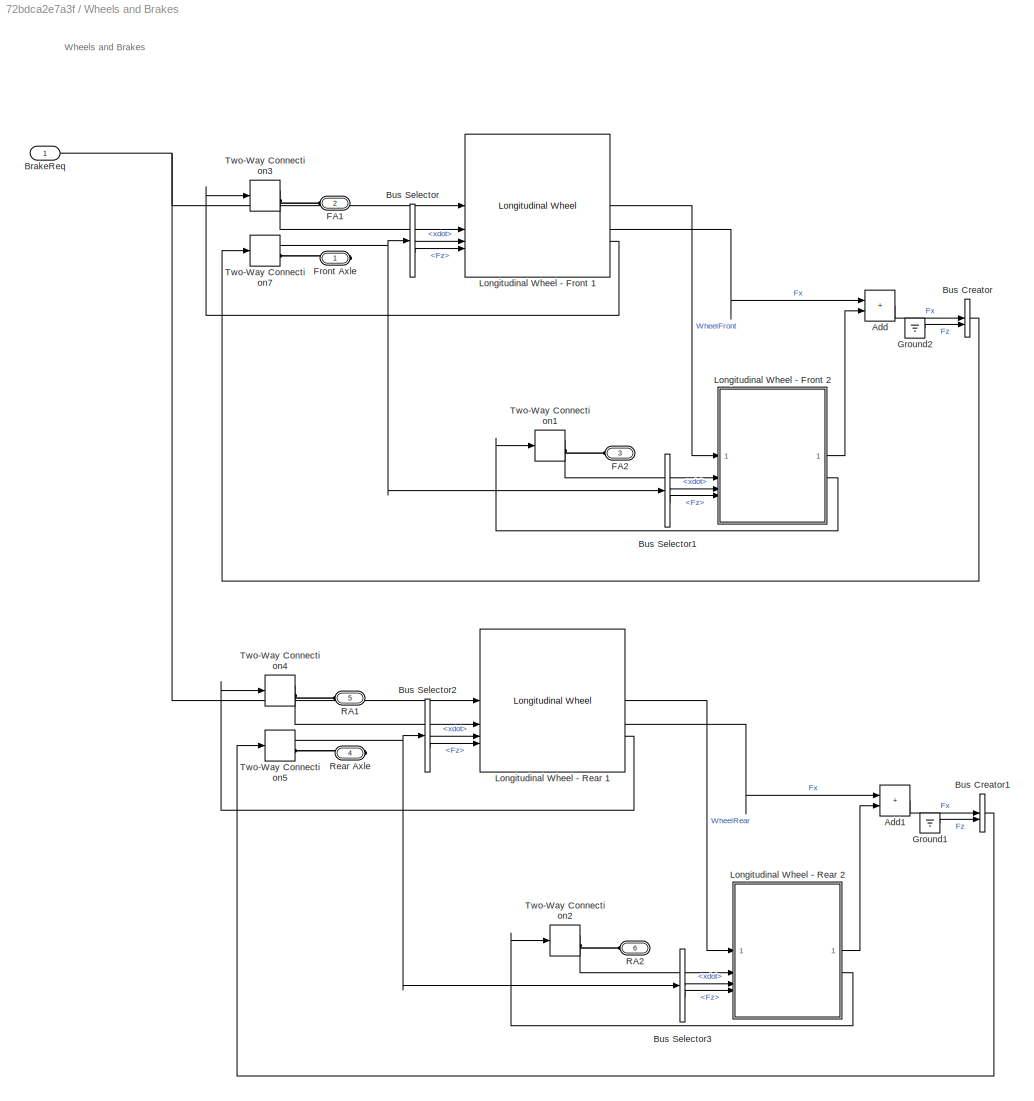
BLOCK [SubSystem] Wheels and Brakes
  VariantControl = 0
BLOCK [Sum] Wheels and Brakes/Add
  IconShape = rectangular
BLOCK [Sum] Wheels and Brakes/Add1
  IconShape = rectangular
BLOCK [Inport] Wheels and Brakes/BrakeReq
BLOCK [BusCreator] Wheels and Brakes/Bus Creator
  DisplayOption = bar
  InheritFromInputs = on
  Inputs = 2
BLOCK [BusCreator] Wheels and Brakes/Bus Creator1
  DisplayOption = bar
  InheritFromInputs = on
  Inputs = 2
BLOCK [BusSelector] Wheels and Brakes/Bus Selector
  OutputSignals = xdot,Fz
BLOCK [BusSelector] Wheels and Brakes/Bus Selector1
  OutputSignals = xdot,Fz
BLOCK [BusSelector] Wheels and Brakes/Bus Selector2
  OutputSignals = xdot,Fz
BLOCK [BusSelector] Wheels and Brakes/Bus Selector3
  OutputSignals = xdot,Fz
BLOCK [PMIOPort] Wheels and Brakes/FA1
  Port = 2
  Side = Left
BLOCK [PMIOPort] Wheels and Brakes/FA2
  Port = 3
  Side = Left
BLOCK [PMIOPort] Wheels and Brakes/Front Axle
  Side = Right
BLOCK [Ground] Wheels and Brakes/Ground1
BLOCK [Ground] Wheels and Brakes/Ground2
BLOCK [Reference] Wheels and Brakes/Longitudinal Wheel - Front 1  REF=autolibshared/Longitudinal Wheel
  AttributesFormatString = Brake Type: %<BrakeType>
  LibrarySourceBlock = autolibwheelslong/Longitudinal Wheel
  SourceBlock = autolibshared/Longitudinal Wheel
  SourceType = Longitudinal Wheel
BLOCK [SubSystem] Wheels and Brakes/Longitudinal Wheel - Front 2
BLOCK [Inport] Wheels and Brakes/Longitudinal Wheel - Front 2/AxlTrq
  Port = 2
BLOCK [BusSelector] Wheels and Brakes/Longitudinal Wheel - Front 2/Bus Selector
  OutputSignals = PwrInfo.PwrTrnsfrd,PwrInfo.PwrNotTrnsfrd,PwrInfo.PwrStored,Fx,Omega
BLOCK [Outport] Wheels and Brakes/Longitudinal Wheel - Front 2/Fx
  VectorParamsAs1DForOutWhenUnconnected = off
BLOCK [Inport] Wheels and Brakes/Longitudinal Wheel - Front 2/Fz
  Port = 4
BLOCK [Inport] Wheels and Brakes/Longitudinal Wheel - Front 2/Info
BLOCK [Outport] Wheels and Brakes/Longitudinal Wheel - Front 2/Omega
  Port = 2
  VectorParamsAs1DForOutWhenUnconnected = off
BLOCK [Reference] Wheels and Brakes/Longitudinal Wheel - Front 2/Power Accounting Bus Creator  REF=autolibpowerinfoutils/Power Accounting Bus Creator
  SourceBlock = autolibpowerinfoutils/Power Accounting Bus Creator
  SourceType = Power Accounting Bus Creator
BLOCK [Terminator] Wheels and Brakes/Longitudinal Wheel - Front 2/Terminator
BLOCK [Terminator] Wheels and Brakes/Longitudinal Wheel - Front 2/Terminator1
BLOCK [Terminator] Wheels and Brakes/Longitudinal Wheel - Front 2/Terminator2
BLOCK [Terminator] Wheels and Brakes/Longitudinal Wheel - Front 2/Terminator3
BLOCK [Inport] Wheels and Brakes/Longitudinal Wheel - Front 2/Vx
  Port = 3
BLOCK [Reference] Wheels and Brakes/Longitudinal Wheel - Rear 1  REF=autolibshared/Longitudinal Wheel
  AttributesFormatString = Brake Type: %<BrakeType>
  LibrarySourceBlock = autolibwheelslong/Longitudinal Wheel
  SourceBlock = autolibshared/Longitudinal Wheel
  SourceType = Longitudinal Wheel
BLOCK [SubSystem] Wheels and Brakes/Longitudinal Wheel - Rear 2
BLOCK [Inport] Wheels and Brakes/Longitudinal Wheel - Rear 2/AxlTrq
  Port = 2
BLOCK [BusSelector] Wheels and Brakes/Longitudinal Wheel - Rear 2/Bus Selector
  OutputSignals = PwrInfo.PwrTrnsfrd,PwrInfo.PwrNotTrnsfrd,PwrInfo.PwrStored,Fx,Omega
BLOCK [Outport] Wheels and Brakes/Longitudinal Wheel - Rear 2/Fx
  VectorParamsAs1DForOutWhenUnconnected = off
BLOCK [Inport] Wheels and Brakes/Longitudinal Wheel - Rear 2/Fz
  Port = 4
BLOCK [Inport] Wheels and Brakes/Longitudinal Wheel - Rear 2/Info
BLOCK [Outport] Wheels and Brakes/Longitudinal Wheel - Rear 2/Omega
  Port = 2
  VectorParamsAs1DForOutWhenUnconnected = off
BLOCK [Reference] Wheels and Brakes/Longitudinal Wheel - Rear 2/Power Accounting Bus Creator  REF=autolibpowerinfoutils/Power Accounting Bus Creator
  SourceBlock = autolibpowerinfoutils/Power Accounting Bus Creator
  SourceType = Power Accounting Bus Creator
BLOCK [Terminator] Wheels and Brakes/Longitudinal Wheel - Rear 2/Terminator
BLOCK [Terminator] Wheels and Brakes/Longitudinal Wheel - Rear 2/Terminator1
BLOCK [Terminator] Wheels and Brakes/Longitudinal Wheel - Rear 2/Terminator2
BLOCK [Terminator] Wheels and Brakes/Longitudinal Wheel - Rear 2/Terminator3
BLOCK [Inport] Wheels and Brakes/Longitudinal Wheel - Rear 2/Vx
  Port = 3
BLOCK [PMIOPort] Wheels and Brakes/RA1
  Port = 5
  Side = Left
BLOCK [PMIOPort] Wheels and Brakes/RA2
  Port = 6
  Side = Left
BLOCK [PMIOPort] Wheels and Brakes/Rear Axle
  Port = 4
  Side = Right
BLOCK [TwoWayConnection] Wheels and Brakes/Two-Way Connection1
BLOCK [TwoWayConnection] Wheels and Brakes/Two-Way Connection2
BLOCK [TwoWayConnection] Wheels and Brakes/Two-Way Connection3
BLOCK [TwoWayConnection] Wheels and Brakes/Two-Way Connection4
BLOCK [TwoWayConnection] Wheels and Brakes/Two-Way Connection5
BLOCK [TwoWayConnection] Wheels and Brakes/Two-Way Connection7
BLOCK [Inport] Wind Vel
  Port = 5
ANNOTATION (root): <copyright redacted>
ANNOTATION DCT: 1) Add Subsystem or Model blocks as valid variant choices. 2) You cannot connect blocks at this level. At simulation, connectivity is automatically determined, based on the active variant and port name matching.
ANNOTATION Wheels and Brakes: Wheels and Brakes
LINE BrakeCmd:1 -> Wheels and Brakes:1
LINE Bus Selector1:1 -> VehFdbk:1
LINE Bus Selector:1 -> TransFdbk:1
LINE DCT/DCT Block/Dual Clutch Transmission:1 -> DCT/DCT Block/Info:1
LINE DCT/DCT Block/Dual Clutch Transmission:2 -> DCT/DCT Block/EngSpd:1
LINE DCT/DCT Block/Dual Clutch Transmission:3 -> DCT/DCT Block/Two-Way Connection2:1
LINE DCT/DCT Block/GearReq:1 -> DCT/DCT Block/Dual Clutch Transmission:1
LINE DCT/DCT Block/Tin:1 -> DCT/DCT Block/Dual Clutch Transmission:2
LINE DCT/DCT Block/Two-Way Connection2:1 -> DCT/DCT Block/Dual Clutch Transmission:3
LINE DCT/DCT System/Bus Creation/A Clutch Info:1 -> DCT/DCT System/Bus Creation/Bus Creator3:4
LINE DCT/DCT System/Bus Creation/A Gear Info:1 -> DCT/DCT System/Bus Creation/Bus Creator3:6
LINE DCT/DCT System/Bus Creation/B Clutch Info:1 -> DCT/DCT System/Bus Creation/Bus Creator3:5
LINE DCT/DCT System/Bus Creation/B Gear Info:1 -> DCT/DCT System/Bus Creation/Bus Creator3:7
LINE DCT/DCT System/Bus Creation/Bus Creator3:1 -> DCT/DCT System/Bus Creation/Info:1
LINE DCT/DCT System/Bus Creation/Bus Creator5:1 -> DCT/DCT System/Bus Creation/Bus Creator3:1
LINE DCT/DCT System/Bus Creation/Bus Creator6:1 -> DCT/DCT System/Bus Creation/Bus Creator3:2
LINE DCT/DCT System/Bus Creation/Bus Creator8:1 -> DCT/DCT System/Bus Creation/Bus Creator3:3
LINE DCT/DCT System/Bus Creation/Bus Selector:1 -> DCT/DCT System/Bus Creation/Bus Creator8:3
LINE DCT/DCT System/Bus Creation/Bus Selector:2 -> DCT/DCT System/Bus Creation/Bus Creator8:4
LINE DCT/DCT System/Bus Creation/Cntrl Info:1 -> DCT/DCT System/Bus Creation/Bus Selector:1
NET DCT/DCT System/Bus Creation/Input Spd:1 -> DCT/DCT System/Bus Creation/Bus Creator5:2, DCT/DCT System/Bus Creation/Mechanical Efficiency:2, DCT/DCT System/Bus Creation/Product3:1
NET DCT/DCT System/Bus Creation/Input Trq:1 -> DCT/DCT System/Bus Creation/Bus Creator5:1, DCT/DCT System/Bus Creation/Mechanical Efficiency:1
LINE DCT/DCT System/Bus Creation/Mechanical Efficiency:1 -> DCT/DCT System/Bus Creation/Bus Creator8:2
NET DCT/DCT System/Bus Creation/Output Spd:1 -> DCT/DCT System/Bus Creation/Bus Creator6:2, DCT/DCT System/Bus Creation/Mechanical Efficiency:4, DCT/DCT System/Bus Creation/Product1:2, DCT/DCT System/Bus Creation/div0protect - abs poly1:1
NET DCT/DCT System/Bus Creation/Output Trq:1 -> DCT/DCT System/Bus Creation/Bus Creator6:1, DCT/DCT System/Bus Creation/Mechanical Efficiency:3, DCT/DCT System/Bus Creation/Product1:1
LINE DCT/DCT System/Bus Creation/Product1:1 -> DCT/DCT System/Bus Creation/Mechanical Efficiency:5
LINE DCT/DCT System/Bus Creation/Product3:1 -> DCT/DCT System/Bus Creation/Bus Creator8:1
LINE DCT/DCT System/Bus Creation/div0protect - abs poly1:1 -> DCT/DCT System/Bus Creation/Product3:2
LINE DCT/DCT System/Bus Creation:1 -> DCT/DCT System/Info:1
LINE DCT/DCT System/Clutches/A Press:1 -> DCT/DCT System/Clutches/Disc Clutch A:1
LINE DCT/DCT System/Clutches/B Press:1 -> DCT/DCT System/Clutches/Disc Clutch B:1
LINE DCT/DCT System/Clutches/Disc Clutch A:1 -> DCT/DCT System/Clutches/A Clutch Info:1
LINE DCT/DCT System/Clutches/Disc Clutch B:1 -> DCT/DCT System/Clutches/B Clutch Info:1
LINE DCT/DCT System/Clutches:1 -> DCT/DCT System/Bus Creation:6
LINE DCT/DCT System/Clutches:2 -> DCT/DCT System/Bus Creation:7
LINE DCT/DCT System/Control/Bus Selector:1 -> DCT/DCT System/Control/Rate Transition3:1
NET DCT/DCT System/Control/DCT Controller:1 -> DCT/DCT System/Control/Bus Selector:1, DCT/DCT System/Control/Rate Transition4:1
LINE DCT/DCT System/Control/DCT Controller:2 -> DCT/DCT System/Control/Terminator:1
LINE DCT/DCT System/Control/DCT Controller:3 -> DCT/DCT System/Control/Rate Transition2:1
LINE DCT/DCT System/Control/DCT Controller:4 -> DCT/DCT System/Control/Rate Transition1:1
LINE DCT/DCT System/Control/GerReq:1 -> DCT/DCT System/Control/Rate Transition:1
LINE DCT/DCT System/Control/Rate Transition1:1 -> DCT/DCT System/Control/B Cmd:1
LINE DCT/DCT System/Control/Rate Transition2:1 -> DCT/DCT System/Control/A Cmd:1
LINE DCT/DCT System/Control/Rate Transition3:1 -> DCT/DCT System/Control/Gear Cmd:1
LINE DCT/DCT System/Control/Rate Transition4:1 -> DCT/DCT System/Control/Cntrl Info:1
LINE DCT/DCT System/Control/Rate Transition:1 -> DCT/DCT System/Control/DCT Controller:1
LINE DCT/DCT System/Control:1 -> DCT/DCT System/Bus Creation:1
NET DCT/DCT System/Control:2 -> DCT/DCT System/Gearbox:1, DCT/DCT System/Hydraulics:1
LINE DCT/DCT System/Control:3 -> DCT/DCT System/Hydraulics:2
LINE DCT/DCT System/Control:4 -> DCT/DCT System/Hydraulics:3
LINE DCT/DCT System/From12:1 -> DCT/DCT System/Bus Creation:5
LINE DCT/DCT System/From6:1 -> DCT/DCT System/Bus Creation:4
LINE DCT/DCT System/From8:1 -> DCT/DCT System/Bus Creation:2
LINE DCT/DCT System/From9:1 -> DCT/DCT System/Bus Creation:3
LINE DCT/DCT System/GearReq:1 -> DCT/DCT System/Control:1
LINE DCT/DCT System/Gearbox/Gear Cmd:1 -> DCT/DCT System/Gearbox/Gear Coord:1
NET DCT/DCT System/Gearbox/Gear Coord/Compare To Zero1:1 -> DCT/DCT System/Gearbox/Gear Coord/Logical Operator1:1, DCT/DCT System/Gearbox/Gear Coord/Logical Operator2:2
NET DCT/DCT System/Gearbox/Gear Coord/Compare To Zero:1 -> DCT/DCT System/Gearbox/Gear Coord/Logical Operator2:1, DCT/DCT System/Gearbox/Gear Coord/Logical Operator3:2
LINE DCT/DCT System/Gearbox/Gear Coord/Constant1:1 -> DCT/DCT System/Gearbox/Gear Coord/Math Function:2
LINE DCT/DCT System/Gearbox/Gear Coord/Constant3:1 -> DCT/DCT System/Gearbox/Gear Coord/Switch:3
LINE DCT/DCT System/Gearbox/Gear Coord/Constant4:1 -> DCT/DCT System/Gearbox/Gear Coord/Switch1:3
NET DCT/DCT System/Gearbox/Gear Coord/In1:1 -> DCT/DCT System/Gearbox/Gear Coord/Compare To Zero:1, DCT/DCT System/Gearbox/Gear Coord/Math Function:1, DCT/DCT System/Gearbox/Gear Coord/Switch1:1, DCT/DCT System/Gearbox/Gear Coord/Switch:1
LINE DCT/DCT System/Gearbox/Gear Coord/Logical Operator1:1 -> DCT/DCT System/Gearbox/Gear Coord/Logical Operator3:1
LINE DCT/DCT System/Gearbox/Gear Coord/Logical Operator2:1 -> DCT/DCT System/Gearbox/Gear Coord/Switch1:2
LINE DCT/DCT System/Gearbox/Gear Coord/Logical Operator3:1 -> DCT/DCT System/Gearbox/Gear Coord/Switch:2
LINE DCT/DCT System/Gearbox/Gear Coord/Math Function:1 -> DCT/DCT System/Gearbox/Gear Coord/Compare To Zero1:1
LINE DCT/DCT System/Gearbox/Gear Coord/Switch1:1 -> DCT/DCT System/Gearbox/Gear Coord/B:1
LINE DCT/DCT System/Gearbox/Gear Coord/Switch:1 -> DCT/DCT System/Gearbox/Gear Coord/A:1
LINE DCT/DCT System/Gearbox/Gear Coord:1 -> DCT/DCT System/Gearbox/Ideal Fixed Gear Transmission A:1
LINE DCT/DCT System/Gearbox/Gear Coord:2 -> DCT/DCT System/Gearbox/Ideal Fixed Gear Transmission B:1
LINE DCT/DCT System/Gearbox/Ideal Fixed Gear Transmission A:1 -> DCT/DCT System/Gearbox/A Gears Info:1
LINE DCT/DCT System/Gearbox/Ideal Fixed Gear Transmission A:2 -> DCT/DCT System/Gearbox/Two-Way Connection2:1
LINE DCT/DCT System/Gearbox/Ideal Fixed Gear Transmission A:3 -> DCT/DCT System/Gearbox/Split Torsional Compliance:2
LINE DCT/DCT System/Gearbox/Ideal Fixed Gear Transmission B:1 -> DCT/DCT System/Gearbox/B Gears Info:1
LINE DCT/DCT System/Gearbox/Ideal Fixed Gear Transmission B:2 -> DCT/DCT System/Gearbox/Two-Way Connection3:1
LINE DCT/DCT System/Gearbox/Ideal Fixed Gear Transmission B:3 -> DCT/DCT System/Gearbox/Split Torsional Compliance:3
NET DCT/DCT System/Gearbox/Split Torsional Compliance:1 -> DCT/DCT System/Gearbox/T_Out:1, DCT/DCT System/Gearbox/Two-Way Connection4:1
LINE DCT/DCT System/Gearbox/Split Torsional Compliance:2 -> DCT/DCT System/Gearbox/Ideal Fixed Gear Transmission A:3
LINE DCT/DCT System/Gearbox/Split Torsional Compliance:3 -> DCT/DCT System/Gearbox/Ideal Fixed Gear Transmission B:3
LINE DCT/DCT System/Gearbox/Two-Way Connection2:1 -> DCT/DCT System/Gearbox/Ideal Fixed Gear Transmission A:2
LINE DCT/DCT System/Gearbox/Two-Way Connection3:1 -> DCT/DCT System/Gearbox/Ideal Fixed Gear Transmission B:2
NET DCT/DCT System/Gearbox/Two-Way Connection4:1 -> DCT/DCT System/Gearbox/Split Torsional Compliance:1, DCT/DCT System/Gearbox/w_Out:1
LINE DCT/DCT System/Gearbox:1 -> DCT/DCT System/Bus Creation:8
LINE DCT/DCT System/Gearbox:2 -> DCT/DCT System/Bus Creation:9
LINE DCT/DCT System/Gearbox:3 -> DCT/DCT System/Goto2:1
LINE DCT/DCT System/Gearbox:4 -> DCT/DCT System/Goto3:1
LINE DCT/DCT System/Hydraulics/A Cmd:1 -> DCT/DCT System/Hydraulics/A Hydraulics Tau:2
LINE DCT/DCT System/Hydraulics/A Hydraulics Tau/2*pi:1 -> DCT/DCT System/Hydraulics/A Hydraulics Tau/Cont LPF Dyn:2
LINE DCT/DCT System/Hydraulics/A Hydraulics Tau/ClutchGain:1 -> DCT/DCT System/Hydraulics/A Hydraulics Tau/Out1:1
LINE DCT/DCT System/Hydraulics/A Hydraulics Tau/Constant1:1 -> DCT/DCT System/Hydraulics/A Hydraulics Tau/Switch:3
LINE DCT/DCT System/Hydraulics/A Hydraulics Tau/Constant2:1 -> DCT/DCT System/Hydraulics/A Hydraulics Tau/Product:1
LINE DCT/DCT System/Hydraulics/A Hydraulics Tau/Cont LPF Dyn:1 -> DCT/DCT System/Hydraulics/A Hydraulics Tau/ClutchGain:1
LINE DCT/DCT System/Hydraulics/A Hydraulics Tau/In1:1 -> DCT/DCT System/Hydraulics/A Hydraulics Tau/Switch:2
LINE DCT/DCT System/Hydraulics/A Hydraulics Tau/In2:1 -> DCT/DCT System/Hydraulics/A Hydraulics Tau/Switch:1
LINE DCT/DCT System/Hydraulics/A Hydraulics Tau/Product:1 -> DCT/DCT System/Hydraulics/A Hydraulics Tau/2*pi:1
LINE DCT/DCT System/Hydraulics/A Hydraulics Tau/Switch:1 -> DCT/DCT System/Hydraulics/A Hydraulics Tau/Cont LPF Dyn:1
LINE DCT/DCT System/Hydraulics/A Hydraulics Tau:1 -> DCT/DCT System/Hydraulics/A Press:1
LINE DCT/DCT System/Hydraulics/B Cmd:1 -> DCT/DCT System/Hydraulics/B Hydraulics Tau:2
LINE DCT/DCT System/Hydraulics/B Hydraulics Tau/2*pi:1 -> DCT/DCT System/Hydraulics/B Hydraulics Tau/Cont LPF Dyn:2
LINE DCT/DCT System/Hydraulics/B Hydraulics Tau/ClutchGain:1 -> DCT/DCT System/Hydraulics/B Hydraulics Tau/Out1:1
LINE DCT/DCT System/Hydraulics/B Hydraulics Tau/Constant1:1 -> DCT/DCT System/Hydraulics/B Hydraulics Tau/Switch:3
LINE DCT/DCT System/Hydraulics/B Hydraulics Tau/Constant2:1 -> DCT/DCT System/Hydraulics/B Hydraulics Tau/Product:1
LINE DCT/DCT System/Hydraulics/B Hydraulics Tau/Cont LPF Dyn:1 -> DCT/DCT System/Hydraulics/B Hydraulics Tau/ClutchGain:1
LINE DCT/DCT System/Hydraulics/B Hydraulics Tau/In1:1 -> DCT/DCT System/Hydraulics/B Hydraulics Tau/Switch:2
LINE DCT/DCT System/Hydraulics/B Hydraulics Tau/In2:1 -> DCT/DCT System/Hydraulics/B Hydraulics Tau/Switch:1
LINE DCT/DCT System/Hydraulics/B Hydraulics Tau/Product:1 -> DCT/DCT System/Hydraulics/B Hydraulics Tau/2*pi:1
LINE DCT/DCT System/Hydraulics/B Hydraulics Tau/Switch:1 -> DCT/DCT System/Hydraulics/B Hydraulics Tau/Cont LPF Dyn:1
LINE DCT/DCT System/Hydraulics/B Hydraulics Tau:1 -> DCT/DCT System/Hydraulics/B Press:1
NET DCT/DCT System/Hydraulics/Gear Cmd:1 -> DCT/DCT System/Hydraulics/A Hydraulics Tau:1, DCT/DCT System/Hydraulics/B Hydraulics Tau:1
LINE DCT/DCT System/Hydraulics:1 -> DCT/DCT System/Clutches:1
LINE DCT/DCT System/Hydraulics:2 -> DCT/DCT System/Clutches:2
NET DCT/DCT System/Tin:1 -> DCT/DCT System/Goto:1, DCT/DCT System/Two-Way Connection1:1
NET DCT/DCT System/Two-Way Connection1:1 -> DCT/DCT System/EngSpd:1, DCT/DCT System/Goto1:1
LINE DCT:1 -> Bus Selector:1
LINE DCT:2 -> EngSpd:1
LINE Differential and Compliance/All Wheel Drive/Front Axle Compliance 1:1 -> Differential and Compliance/All Wheel Drive/Front Axle Compliance 2:1
LINE Differential and Compliance/All Wheel Drive/Front Axle Compliance 2/Bus Selector1:1 -> Differential and Compliance/All Wheel Drive/Front Axle Compliance 2/Two-Way Connection4:1
LINE Differential and Compliance/All Wheel Drive/Front Axle Compliance 2/Bus Selector1:2 -> Differential and Compliance/All Wheel Drive/Front Axle Compliance 2/Two-Way Connection1:1
LINE Differential and Compliance/All Wheel Drive/Front Axle Compliance 2/Bus Selector:1 -> Differential and Compliance/All Wheel Drive/Front Axle Compliance 2/Power Accounting Bus Creator:1
LINE Differential and Compliance/All Wheel Drive/Front Axle Compliance 2/Bus Selector:2 -> Differential and Compliance/All Wheel Drive/Front Axle Compliance 2/Power Accounting Bus Creator:2
LINE Differential and Compliance/All Wheel Drive/Front Axle Compliance 2/Bus Selector:3 -> Differential and Compliance/All Wheel Drive/Front Axle Compliance 2/Power Accounting Bus Creator:3
NET Differential and Compliance/All Wheel Drive/Front Axle Compliance 2/Info:1 -> Differential and Compliance/All Wheel Drive/Front Axle Compliance 2/Bus Selector1:1, Differential and Compliance/All Wheel Drive/Front Axle Compliance 2/Bus Selector:1
LINE Differential and Compliance/All Wheel Drive/Front Axle Compliance 2/Power Accounting Bus Creator:1 -> Differential and Compliance/All Wheel Drive/Front Axle Compliance 2/Terminator2:1
LINE Differential and Compliance/All Wheel Drive/Front Axle Compliance 2/Two-Way Connection1:1 -> Differential and Compliance/All Wheel Drive/Front Axle Compliance 2/Terminator1:1
LINE Differential and Compliance/All Wheel Drive/Front Axle Compliance 2/Two-Way Connection4:1 -> Differential and Compliance/All Wheel Drive/Front Axle Compliance 2/Terminator:1
LINE Differential and Compliance/All Wheel Drive/Limited Slip Differential:1 -> Differential and Compliance/All Wheel Drive/Terminator1:1
LINE Differential and Compliance/All Wheel Drive/Limited Slip Differential:2 -> Differential and Compliance/All Wheel Drive/Torsional Compliance1:1
LINE Differential and Compliance/All Wheel Drive/Limited Slip Differential:3 -> Differential and Compliance/All Wheel Drive/Two-Way Connection4:1
LINE Differential and Compliance/All Wheel Drive/Limited Slip Differential:4 -> Differential and Compliance/All Wheel Drive/Two-Way Connection6:1
LINE Differential and Compliance/All Wheel Drive/Open Differential:1 -> Differential and Compliance/All Wheel Drive/Terminator2:1
LINE Differential and Compliance/All Wheel Drive/Open Differential:2 -> Differential and Compliance/All Wheel Drive/Torsional Compliance:1
LINE Differential and Compliance/All Wheel Drive/Open Differential:3 -> Differential and Compliance/All Wheel Drive/Two-Way Connection1:1
LINE Differential and Compliance/All Wheel Drive/Open Differential:4 -> Differential and Compliance/All Wheel Drive/Two-Way Connection5:1
LINE Differential and Compliance/All Wheel Drive/Rear Axle Compliance 1:1 -> Differential and Compliance/All Wheel Drive/Rear Axle Compliance 2:1
LINE Differential and Compliance/All Wheel Drive/Rear Axle Compliance 2/Bus Selector1:1 -> Differential and Compliance/All Wheel Drive/Rear Axle Compliance 2/Two-Way Connection4:1
LINE Differential and Compliance/All Wheel Drive/Rear Axle Compliance 2/Bus Selector1:2 -> Differential and Compliance/All Wheel Drive/Rear Axle Compliance 2/Two-Way Connection1:1
LINE Differential and Compliance/All Wheel Drive/Rear Axle Compliance 2/Bus Selector:1 -> Differential and Compliance/All Wheel Drive/Rear Axle Compliance 2/Power Accounting Bus Creator:1
LINE Differential and Compliance/All Wheel Drive/Rear Axle Compliance 2/Bus Selector:2 -> Differential and Compliance/All Wheel Drive/Rear Axle Compliance 2/Power Accounting Bus Creator:2
LINE Differential and Compliance/All Wheel Drive/Rear Axle Compliance 2/Bus Selector:3 -> Differential and Compliance/All Wheel Drive/Rear Axle Compliance 2/Power Accounting Bus Creator:3
NET Differential and Compliance/All Wheel Drive/Rear Axle Compliance 2/Info:1 -> Differential and Compliance/All Wheel Drive/Rear Axle Compliance 2/Bus Selector1:1, Differential and Compliance/All Wheel Drive/Rear Axle Compliance 2/Bus Selector:1
LINE Differential and Compliance/All Wheel Drive/Rear Axle Compliance 2/Power Accounting Bus Creator:1 -> Differential and Compliance/All Wheel Drive/Rear Axle Compliance 2/Terminator2:1
LINE Differential and Compliance/All Wheel Drive/Rear Axle Compliance 2/Two-Way Connection1:1 -> Differential and Compliance/All Wheel Drive/Rear Axle Compliance 2/Terminator1:1
LINE Differential and Compliance/All Wheel Drive/Rear Axle Compliance 2/Two-Way Connection4:1 -> Differential and Compliance/All Wheel Drive/Rear Axle Compliance 2/Terminator:1
LINE Differential and Compliance/All Wheel Drive/Torsional Compliance1:1 -> Differential and Compliance/All Wheel Drive/Limited Slip Differential:1
LINE Differential and Compliance/All Wheel Drive/Torsional Compliance1:2 -> Differential and Compliance/All Wheel Drive/Transfer Case:3
LINE Differential and Compliance/All Wheel Drive/Torsional Compliance:1 -> Differential and Compliance/All Wheel Drive/Open Differential:1
LINE Differential and Compliance/All Wheel Drive/Torsional Compliance:2 -> Differential and Compliance/All Wheel Drive/Transfer Case:2
LINE Differential and Compliance/All Wheel Drive/Transfer Case:1 -> Differential and Compliance/All Wheel Drive/Terminator:1
LINE Differential and Compliance/All Wheel Drive/Transfer Case:2 -> Differential and Compliance/All Wheel Drive/Two-Way Connection7:1
LINE Differential and Compliance/All Wheel Drive/Transfer Case:3 -> Differential and Compliance/All Wheel Drive/Torsional Compliance:2
LINE Differential and Compliance/All Wheel Drive/Transfer Case:4 -> Differential and Compliance/All Wheel Drive/Torsional Compliance1:2
LINE Differential and Compliance/All Wheel Drive/Two-Way Connection1:1 -> Differential and Compliance/All Wheel Drive/Open Differential:2
LINE Differential and Compliance/All Wheel Drive/Two-Way Connection4:1 -> Differential and Compliance/All Wheel Drive/Limited Slip Differential:2
LINE Differential and Compliance/All Wheel Drive/Two-Way Connection5:1 -> Differential and Compliance/All Wheel Drive/Open Differential:3
LINE Differential and Compliance/All Wheel Drive/Two-Way Connection6:1 -> Differential and Compliance/All Wheel Drive/Limited Slip Differential:3
LINE Differential and Compliance/All Wheel Drive/Two-Way Connection7:1 -> Differential and Compliance/All Wheel Drive/Transfer Case:1
LINE Differential and Compliance/Front Wheel Drive/Front Axle Compliance 1:1 -> Differential and Compliance/Front Wheel Drive/Front Axle Compliance 2:1
LINE Differential and Compliance/Front Wheel Drive/Front Axle Compliance 2/Bus Selector1:1 -> Differential and Compliance/Front Wheel Drive/Front Axle Compliance 2/Two-Way Connection4:1
LINE Differential and Compliance/Front Wheel Drive/Front Axle Compliance 2/Bus Selector1:2 -> Differential and Compliance/Front Wheel Drive/Front Axle Compliance 2/Two-Way Connection1:1
LINE Differential and Compliance/Front Wheel Drive/Front Axle Compliance 2/Bus Selector:1 -> Differential and Compliance/Front Wheel Drive/Front Axle Compliance 2/Power Accounting Bus Creator:1
LINE Differential and Compliance/Front Wheel Drive/Front Axle Compliance 2/Bus Selector:2 -> Differential and Compliance/Front Wheel Drive/Front Axle Compliance 2/Power Accounting Bus Creator:2
LINE Differential and Compliance/Front Wheel Drive/Front Axle Compliance 2/Bus Selector:3 -> Differential and Compliance/Front Wheel Drive/Front Axle Compliance 2/Power Accounting Bus Creator:3
NET Differential and Compliance/Front Wheel Drive/Front Axle Compliance 2/Info:1 -> Differential and Compliance/Front Wheel Drive/Front Axle Compliance 2/Bus Selector1:1, Differential and Compliance/Front Wheel Drive/Front Axle Compliance 2/Bus Selector:1
LINE Differential and Compliance/Front Wheel Drive/Front Axle Compliance 2/Power Accounting Bus Creator:1 -> Differential and Compliance/Front Wheel Drive/Front Axle Compliance 2/Terminator2:1
LINE Differential and Compliance/Front Wheel Drive/Front Axle Compliance 2/Two-Way Connection1:1 -> Differential and Compliance/Front Wheel Drive/Front Axle Compliance 2/Terminator1:1
LINE Differential and Compliance/Front Wheel Drive/Front Axle Compliance 2/Two-Way Connection4:1 -> Differential and Compliance/Front Wheel Drive/Front Axle Compliance 2/Terminator:1
LINE Differential and Compliance/Front Wheel Drive/Open Differential:1 -> Differential and Compliance/Front Wheel Drive/Terminator6:1
LINE Differential and Compliance/Front Wheel Drive/Open Differential:2 -> Differential and Compliance/Front Wheel Drive/Two-Way Connection2:1
LINE Differential and Compliance/Front Wheel Drive/Open Differential:3 -> Differential and Compliance/Front Wheel Drive/Two-Way Connection1:1
LINE Differential and Compliance/Front Wheel Drive/Open Differential:4 -> Differential and Compliance/Front Wheel Drive/Two-Way Connection3:1
LINE Differential and Compliance/Front Wheel Drive/Rear Axle 1/Ground:1 -> Differential and Compliance/Front Wheel Drive/Rear Axle 1/Two-Way Connection:1
LINE Differential and Compliance/Front Wheel Drive/Rear Axle 1/Two-Way Connection:1 -> Differential and Compliance/Front Wheel Drive/Rear Axle 1/Terminator1:1
LINE Differential and Compliance/Front Wheel Drive/Rear Axle 2/Ground1:1 -> Differential and Compliance/Front Wheel Drive/Rear Axle 2/Two-Way Connection4:1
LINE Differential and Compliance/Front Wheel Drive/Rear Axle 2/Two-Way Connection4:1 -> Differential and Compliance/Front Wheel Drive/Rear Axle 2/Terminator:1
LINE Differential and Compliance/Front Wheel Drive/Two-Way Connection1:1 -> Differential and Compliance/Front Wheel Drive/Open Differential:2
LINE Differential and Compliance/Front Wheel Drive/Two-Way Connection2:1 -> Differential and Compliance/Front Wheel Drive/Open Differential:1
LINE Differential and Compliance/Front Wheel Drive/Two-Way Connection3:1 -> Differential and Compliance/Front Wheel Drive/Open Differential:3
LINE Differential and Compliance/Rear Wheel Drive/Front Axle 1/Ground:1 -> Differential and Compliance/Rear Wheel Drive/Front Axle 1/Two-Way Connection:1
LINE Differential and Compliance/Rear Wheel Drive/Front Axle 1/Two-Way Connection:1 -> Differential and Compliance/Rear Wheel Drive/Front Axle 1/Terminator1:1
LINE Differential and Compliance/Rear Wheel Drive/Front Axle 2/Ground1:1 -> Differential and Compliance/Rear Wheel Drive/Front Axle 2/Two-Way Connection4:1
LINE Differential and Compliance/Rear Wheel Drive/Front Axle 2/Two-Way Connection4:1 -> Differential and Compliance/Rear Wheel Drive/Front Axle 2/Terminator:1
LINE Differential and Compliance/Rear Wheel Drive/Open Differential:1 -> Differential and Compliance/Rear Wheel Drive/Terminator6:1
LINE Differential and Compliance/Rear Wheel Drive/Open Differential:2 -> Differential and Compliance/Rear Wheel Drive/Two-Way Connection2:1
LINE Differential and Compliance/Rear Wheel Drive/Open Differential:3 -> Differential and Compliance/Rear Wheel Drive/Two-Way Connection1:1
LINE Differential and Compliance/Rear Wheel Drive/Open Differential:4 -> Differential and Compliance/Rear Wheel Drive/Two-Way Connection3:1
LINE Differential and Compliance/Rear Wheel Drive/Rear Axle Compliance 1:1 -> Differential and Compliance/Rear Wheel Drive/Rear Axle Compliance 2:1
LINE Differential and Compliance/Rear Wheel Drive/Rear Axle Compliance 2/Bus Selector1:1 -> Differential and Compliance/Rear Wheel Drive/Rear Axle Compliance 2/Two-Way Connection4:1
LINE Differential and Compliance/Rear Wheel Drive/Rear Axle Compliance 2/Bus Selector1:2 -> Differential and Compliance/Rear Wheel Drive/Rear Axle Compliance 2/Two-Way Connection1:1
LINE Differential and Compliance/Rear Wheel Drive/Rear Axle Compliance 2/Bus Selector:1 -> Differential and Compliance/Rear Wheel Drive/Rear Axle Compliance 2/Power Accounting Bus Creator:1
LINE Differential and Compliance/Rear Wheel Drive/Rear Axle Compliance 2/Bus Selector:2 -> Differential and Compliance/Rear Wheel Drive/Rear Axle Compliance 2/Power Accounting Bus Creator:2
LINE Differential and Compliance/Rear Wheel Drive/Rear Axle Compliance 2/Bus Selector:3 -> Differential and Compliance/Rear Wheel Drive/Rear Axle Compliance 2/Power Accounting Bus Creator:3
NET Differential and Compliance/Rear Wheel Drive/Rear Axle Compliance 2/Info:1 -> Differential and Compliance/Rear Wheel Drive/Rear Axle Compliance 2/Bus Selector1:1, Differential and Compliance/Rear Wheel Drive/Rear Axle Compliance 2/Bus Selector:1
LINE Differential and Compliance/Rear Wheel Drive/Rear Axle Compliance 2/Power Accounting Bus Creator:1 -> Differential and Compliance/Rear Wheel Drive/Rear Axle Compliance 2/Terminator2:1
LINE Differential and Compliance/Rear Wheel Drive/Rear Axle Compliance 2/Two-Way Connection1:1 -> Differential and Compliance/Rear Wheel Drive/Rear Axle Compliance 2/Terminator1:1
LINE Differential and Compliance/Rear Wheel Drive/Rear Axle Compliance 2/Two-Way Connection4:1 -> Differential and Compliance/Rear Wheel Drive/Rear Axle Compliance 2/Terminator:1
LINE Differential and Compliance/Rear Wheel Drive/Two-Way Connection1:1 -> Differential and Compliance/Rear Wheel Drive/Open Differential:2
LINE Differential and Compliance/Rear Wheel Drive/Two-Way Connection2:1 -> Differential and Compliance/Rear Wheel Drive/Open Differential:1
LINE Differential and Compliance/Rear Wheel Drive/Two-Way Connection3:1 -> Differential and Compliance/Rear Wheel Drive/Open Differential:3
LINE EngineTrq:1 -> DCT:2
LINE Grade:1 -> Vehicle:1
LINE TransmissionCmd:1 -> DCT:1
LINE Vehicle/Bus Creator1:1 -> Vehicle/Two-Way Connection1:1
LINE Vehicle/Bus Creator:1 -> Vehicle/Two-Way Connection8:1
LINE Vehicle/Bus Selector2:1 -> Vehicle/Signal Specification3:1
LINE Vehicle/Bus Selector2:2 -> Vehicle/Mux2:2
LINE Vehicle/Bus Selector:1 -> Vehicle/Signal Specification4:1
LINE Vehicle/Bus Selector:2 -> Vehicle/Mux2:1
LINE Vehicle/Grade:1 -> Vehicle/Vehicle Body 3 DOF Longitudinal:5
NET Vehicle/Ground:1 -> Vehicle/Mux1:2, Vehicle/Mux1:3
LINE Vehicle/Integrator:1 -> Vehicle/Signal Specification1:1
LINE Vehicle/Mux1:1 -> Vehicle/Signal Specification:1
NET Vehicle/Mux2:1 -> Vehicle/Integrator:1, Vehicle/Signal Specification2:1
LINE Vehicle/Signal Specification1:1 -> Vehicle/Vehicle Body 3 DOF Longitudinal:3
LINE Vehicle/Signal Specification2:1 -> Vehicle/Vehicle Body 3 DOF Longitudinal:4
LINE Vehicle/Signal Specification3:1 -> Vehicle/Vehicle Body 3 DOF Longitudinal:2
LINE Vehicle/Signal Specification4:1 -> Vehicle/Vehicle Body 3 DOF Longitudinal:1
LINE Vehicle/Signal Specification:1 -> Vehicle/Vehicle Body 3 DOF Longitudinal:6
LINE Vehicle/Two-Way Connection1:1 -> Vehicle/Bus Selector2:1
LINE Vehicle/Two-Way Connection8:1 -> Vehicle/Bus Selector:1
LINE Vehicle/Vehicle Body 3 DOF Longitudinal:1 -> Vehicle/Info:1
NET Vehicle/Vehicle Body 3 DOF Longitudinal:2 -> Vehicle/Bus Creator1:1, Vehicle/Bus Creator:1
LINE Vehicle/Vehicle Body 3 DOF Longitudinal:3 -> Vehicle/Bus Creator:2
LINE Vehicle/Vehicle Body 3 DOF Longitudinal:4 -> Vehicle/Bus Creator1:2
LINE Vehicle/Wind Vel:1 -> Vehicle/Mux1:1
LINE Vehicle:1 -> Bus Selector1:1
LINE Wheels and Brakes/Add1:1 -> Wheels and Brakes/Bus Creator1:1
LINE Wheels and Brakes/Add:1 -> Wheels and Brakes/Bus Creator:1
NET Wheels and Brakes/BrakeReq:1 -> Wheels and Brakes/Longitudinal Wheel - Front 1:1, Wheels and Brakes/Longitudinal Wheel - Rear 1:1
LINE Wheels and Brakes/Bus Creator1:1 -> Wheels and Brakes/Two-Way Connection5:1
LINE Wheels and Brakes/Bus Creator:1 -> Wheels and Brakes/Two-Way Connection7:1
LINE Wheels and Brakes/Bus Selector1:1 -> Wheels and Brakes/Longitudinal Wheel - Front 2:3
LINE Wheels and Brakes/Bus Selector1:2 -> Wheels and Brakes/Longitudinal Wheel - Front 2:4
LINE Wheels and Brakes/Bus Selector2:1 -> Wheels and Brakes/Longitudinal Wheel - Rear 1:3
LINE Wheels and Brakes/Bus Selector2:2 -> Wheels and Brakes/Longitudinal Wheel - Rear 1:4
LINE Wheels and Brakes/Bus Selector3:1 -> Wheels and Brakes/Longitudinal Wheel - Rear 2:3
LINE Wheels and Brakes/Bus Selector3:2 -> Wheels and Brakes/Longitudinal Wheel - Rear 2:4
LINE Wheels and Brakes/Bus Selector:1 -> Wheels and Brakes/Longitudinal Wheel - Front 1:3
LINE Wheels and Brakes/Bus Selector:2 -> Wheels and Brakes/Longitudinal Wheel - Front 1:4
LINE Wheels and Brakes/Ground1:1 -> Wheels and Brakes/Bus Creator1:2
LINE Wheels and Brakes/Ground2:1 -> Wheels and Brakes/Bus Creator:2
LINE Wheels and Brakes/Longitudinal Wheel - Front 1:1 -> Wheels and Brakes/Longitudinal Wheel - Front 2:1
LINE Wheels and Brakes/Longitudinal Wheel - Front 1:2 -> Wheels and Brakes/Add:1
LINE Wheels and Brakes/Longitudinal Wheel - Front 1:3 -> Wheels and Brakes/Two-Way Connection3:1
LINE Wheels and Brakes/Longitudinal Wheel - Front 2/AxlTrq:1 -> Wheels and Brakes/Longitudinal Wheel - Front 2/Terminator:1
LINE Wheels and Brakes/Longitudinal Wheel - Front 2/Bus Selector:1 -> Wheels and Brakes/Longitudinal Wheel - Front 2/Power Accounting Bus Creator:1
LINE Wheels and Brakes/Longitudinal Wheel - Front 2/Bus Selector:2 -> Wheels and Brakes/Longitudinal Wheel - Front 2/Power Accounting Bus Creator:2
LINE Wheels and Brakes/Longitudinal Wheel - Front 2/Bus Selector:3 -> Wheels and Brakes/Longitudinal Wheel - Front 2/Power Accounting Bus Creator:3
LINE Wheels and Brakes/Longitudinal Wheel - Front 2/Bus Selector:4 -> Wheels and Brakes/Longitudinal Wheel - Front 2/Fx:1
LINE Wheels and Brakes/Longitudinal Wheel - Front 2/Bus Selector:5 -> Wheels and Brakes/Longitudinal Wheel - Front 2/Omega:1
LINE Wheels and Brakes/Longitudinal Wheel - Front 2/Fz:1 -> Wheels and Brakes/Longitudinal Wheel - Front 2/Terminator2:1
LINE Wheels and Brakes/Longitudinal Wheel - Front 2/Info:1 -> Wheels and Brakes/Longitudinal Wheel - Front 2/Bus Selector:1
LINE Wheels and Brakes/Longitudinal Wheel - Front 2/Power Accounting Bus Creator:1 -> Wheels and Brakes/Longitudinal Wheel - Front 2/Terminator3:1
LINE Wheels and Brakes/Longitudinal Wheel - Front 2/Vx:1 -> Wheels and Brakes/Longitudinal Wheel - Front 2/Terminator1:1
LINE Wheels and Brakes/Longitudinal Wheel - Front 2:1 -> Wheels and Brakes/Add:2
LINE Wheels and Brakes/Longitudinal Wheel - Front 2:2 -> Wheels and Brakes/Two-Way Connection1:1
LINE Wheels and Brakes/Longitudinal Wheel - Rear 1:1 -> Wheels and Brakes/Longitudinal Wheel - Rear 2:1
LINE Wheels and Brakes/Longitudinal Wheel - Rear 1:2 -> Wheels and Brakes/Add1:1
LINE Wheels and Brakes/Longitudinal Wheel - Rear 1:3 -> Wheels and Brakes/Two-Way Connection4:1
LINE Wheels and Brakes/Longitudinal Wheel - Rear 2/AxlTrq:1 -> Wheels and Brakes/Longitudinal Wheel - Rear 2/Terminator:1
LINE Wheels and Brakes/Longitudinal Wheel - Rear 2/Bus Selector:1 -> Wheels and Brakes/Longitudinal Wheel - Rear 2/Power Accounting Bus Creator:1
LINE Wheels and Brakes/Longitudinal Wheel - Rear 2/Bus Selector:2 -> Wheels and Brakes/Longitudinal Wheel - Rear 2/Power Accounting Bus Creator:2
LINE Wheels and Brakes/Longitudinal Wheel - Rear 2/Bus Selector:3 -> Wheels and Brakes/Longitudinal Wheel - Rear 2/Power Accounting Bus Creator:3
LINE Wheels and Brakes/Longitudinal Wheel - Rear 2/Bus Selector:4 -> Wheels and Brakes/Longitudinal Wheel - Rear 2/Fx:1
LINE Wheels and Brakes/Longitudinal Wheel - Rear 2/Bus Selector:5 -> Wheels and Brakes/Longitudinal Wheel - Rear 2/Omega:1
LINE Wheels and Brakes/Longitudinal Wheel - Rear 2/Fz:1 -> Wheels and Brakes/Longitudinal Wheel - Rear 2/Terminator2:1
LINE Wheels and Brakes/Longitudinal Wheel - Rear 2/Info:1 -> Wheels and Brakes/Longitudinal Wheel - Rear 2/Bus Selector:1
LINE Wheels and Brakes/Longitudinal Wheel - Rear 2/Power Accounting Bus Creator:1 -> Wheels and Brakes/Longitudinal Wheel - Rear 2/Terminator3:1
LINE Wheels and Brakes/Longitudinal Wheel - Rear 2/Vx:1 -> Wheels and Brakes/Longitudinal Wheel - Rear 2/Terminator1:1
LINE Wheels and Brakes/Longitudinal Wheel - Rear 2:1 -> Wheels and Brakes/Add1:2
LINE Wheels and Brakes/Longitudinal Wheel - Rear 2:2 -> Wheels and Brakes/Two-Way Connection2:1
LINE Wheels and Brakes/Two-Way Connection1:1 -> Wheels and Brakes/Longitudinal Wheel - Front 2:2
LINE Wheels and Brakes/Two-Way Connection2:1 -> Wheels and Brakes/Longitudinal Wheel - Rear 2:2
LINE Wheels and Brakes/Two-Way Connection3:1 -> Wheels and Brakes/Longitudinal Wheel - Front 1:2
LINE Wheels and Brakes/Two-Way Connection4:1 -> Wheels and Brakes/Longitudinal Wheel - Rear 1:2
NET Wheels and Brakes/Two-Way Connection5:1 -> Wheels and Brakes/Bus Selector2:1, Wheels and Brakes/Bus Selector3:1
NET Wheels and Brakes/Two-Way Connection7:1 -> Wheels and Brakes/Bus Selector1:1, Wheels and Brakes/Bus Selector:1
LINE Wind Vel:1 -> Vehicle:2
PLINE DCT/DCT Block/Driveshaft Compliance:LConn1 -- DCT/DCT Block/Two-Way Connection2:RConn1
PLINE DCT/DCT Block/Driveshaft Compliance:RConn1 -- DCT/DCT Block/T:RConn1
PLINE DCT/DCT System/Clutches/A:RConn1 -- DCT/DCT System/Clutches/Disc Clutch A:RConn1
PLINE DCT/DCT System/Clutches/B:RConn1 -- DCT/DCT System/Clutches/Disc Clutch B:RConn1
PLINE DCT/DCT System/Clutches/Disc Clutch A:LConn1 -- DCT/DCT System/Clutches/Split Torsional Compliance:RConn1
PLINE DCT/DCT System/Clutches/Disc Clutch B:LConn1 -- DCT/DCT System/Clutches/Split Torsional Compliance:RConn2
PLINE DCT/DCT System/Clutches/E:RConn1 -- DCT/DCT System/Clutches/Rotational Inertia:LConn1
PLINE DCT/DCT System/Clutches/Rotational Inertia:RConn1 -- DCT/DCT System/Clutches/Split Torsional Compliance:LConn1
PLINE DCT/DCT System/Clutches:LConn1 -- DCT/DCT System/Two-Way Connection1:RConn1
PLINE DCT/DCT System/Clutches:RConn1 -- DCT/DCT System/Gearbox:LConn1
PLINE DCT/DCT System/Clutches:RConn2 -- DCT/DCT System/Gearbox:LConn2
PLINE DCT/DCT System/Gearbox/A Clutch:RConn1 -- DCT/DCT System/Gearbox/Torsional Compliance:LConn1
PLINE DCT/DCT System/Gearbox/B Clutch:RConn1 -- DCT/DCT System/Gearbox/Torsional Compliance1:LConn1
PLINE DCT/DCT System/Gearbox/T:RConn1 -- DCT/DCT System/Gearbox/Two-Way Connection4:RConn1
PLINE DCT/DCT System/Gearbox/Torsional Compliance1:RConn1 -- DCT/DCT System/Gearbox/Two-Way Connection3:RConn1
PLINE DCT/DCT System/Gearbox/Torsional Compliance:RConn1 -- DCT/DCT System/Gearbox/Two-Way Connection2:RConn1
PLINE DCT/DCT System/Gearbox:RConn1 -- DCT/DCT System/T:RConn1
PLINE DCT:RConn1 -- Differential and Compliance:LConn1
PLINE Differential and Compliance/All Wheel Drive/D:RConn1 -- Differential and Compliance/All Wheel Drive/Two-Way Connection7:RConn1
PLINE Differential and Compliance/All Wheel Drive/FA1:RConn1 -- Differential and Compliance/All Wheel Drive/Front Axle Compliance 1:RConn1
PLINE Differential and Compliance/All Wheel Drive/FA2:RConn1 -- Differential and Compliance/All Wheel Drive/Front Axle Compliance 2:RConn1
PLINE Differential and Compliance/All Wheel Drive/Front Axle Compliance 1:LConn1 -- Differential and Compliance/All Wheel Drive/Two-Way Connection1:RConn1
PLINE Differential and Compliance/All Wheel Drive/Front Axle Compliance 2/C:RConn1 -- Differential and Compliance/All Wheel Drive/Front Axle Compliance 2/Two-Way Connection1:RConn1
PLINE Differential and Compliance/All Wheel Drive/Front Axle Compliance 2/R:RConn1 -- Differential and Compliance/All Wheel Drive/Front Axle Compliance 2/Two-Way Connection4:RConn1
PLINE Differential and Compliance/All Wheel Drive/Front Axle Compliance 2:LConn1 -- Differential and Compliance/All Wheel Drive/Two-Way Connection5:RConn1
PLINE Differential and Compliance/All Wheel Drive/RA1:RConn1 -- Differential and Compliance/All Wheel Drive/Rear Axle Compliance 1:RConn1
PLINE Differential and Compliance/All Wheel Drive/RA2:RConn1 -- Differential and Compliance/All Wheel Drive/Rear Axle Compliance 2:RConn1
PLINE Differential and Compliance/All Wheel Drive/Rear Axle Compliance 1:LConn1 -- Differential and Compliance/All Wheel Drive/Two-Way Connection4:RConn1
PLINE Differential and Compliance/All Wheel Drive/Rear Axle Compliance 2/C:RConn1 -- Differential and Compliance/All Wheel Drive/Rear Axle Compliance 2/Two-Way Connection1:RConn1
PLINE Differential and Compliance/All Wheel Drive/Rear Axle Compliance 2/R:RConn1 -- Differential and Compliance/All Wheel Drive/Rear Axle Compliance 2/Two-Way Connection4:RConn1
PLINE Differential and Compliance/All Wheel Drive/Rear Axle Compliance 2:LConn1 -- Differential and Compliance/All Wheel Drive/Two-Way Connection6:RConn1
PLINE Differential and Compliance/Front Wheel Drive/D:RConn1 -- Differential and Compliance/Front Wheel Drive/Two-Way Connection2:RConn1
PLINE Differential and Compliance/Front Wheel Drive/FA1:RConn1 -- Differential and Compliance/Front Wheel Drive/Front Axle Compliance 1:RConn1
PLINE Differential and Compliance/Front Wheel Drive/FA2:RConn1 -- Differential and Compliance/Front Wheel Drive/Front Axle Compliance 2:RConn1
PLINE Differential and Compliance/Front Wheel Drive/Front Axle Compliance 1:LConn1 -- Differential and Compliance/Front Wheel Drive/Two-Way Connection1:RConn1
PLINE Differential and Compliance/Front Wheel Drive/Front Axle Compliance 2/C:RConn1 -- Differential and Compliance/Front Wheel Drive/Front Axle Compliance 2/Two-Way Connection1:RConn1
PLINE Differential and Compliance/Front Wheel Drive/Front Axle Compliance 2/R:RConn1 -- Differential and Compliance/Front Wheel Drive/Front Axle Compliance 2/Two-Way Connection4:RConn1
PLINE Differential and Compliance/Front Wheel Drive/Front Axle Compliance 2:LConn1 -- Differential and Compliance/Front Wheel Drive/Two-Way Connection3:RConn1
PLINE Differential and Compliance/Front Wheel Drive/RA1:RConn1 -- Differential and Compliance/Front Wheel Drive/Rear Axle 1:RConn1
PLINE Differential and Compliance/Front Wheel Drive/RA2:RConn1 -- Differential and Compliance/Front Wheel Drive/Rear Axle 2:RConn1
PLINE Differential and Compliance/Front Wheel Drive/Rear Axle 1/RA1:RConn1 -- Differential and Compliance/Front Wheel Drive/Rear Axle 1/Two-Way Connection:RConn1
PLINE Differential and Compliance/Front Wheel Drive/Rear Axle 2/RA2:RConn1 -- Differential and Compliance/Front Wheel Drive/Rear Axle 2/Two-Way Connection4:RConn1
PLINE Differential and Compliance/Rear Wheel Drive/D:RConn1 -- Differential and Compliance/Rear Wheel Drive/Two-Way Connection2:RConn1
PLINE Differential and Compliance/Rear Wheel Drive/FA1:RConn1 -- Differential and Compliance/Rear Wheel Drive/Front Axle 1:RConn1
PLINE Differential and Compliance/Rear Wheel Drive/FA2:RConn1 -- Differential and Compliance/Rear Wheel Drive/Front Axle 2:RConn1
PLINE Differential and Compliance/Rear Wheel Drive/Front Axle 1/FA1:RConn1 -- Differential and Compliance/Rear Wheel Drive/Front Axle 1/Two-Way Connection:RConn1
PLINE Differential and Compliance/Rear Wheel Drive/Front Axle 2/FA2:RConn1 -- Differential and Compliance/Rear Wheel Drive/Front Axle 2/Two-Way Connection4:RConn1
PLINE Differential and Compliance/Rear Wheel Drive/RA1:RConn1 -- Differential and Compliance/Rear Wheel Drive/Rear Axle Compliance 1:RConn1
PLINE Differential and Compliance/Rear Wheel Drive/RA2:RConn1 -- Differential and Compliance/Rear Wheel Drive/Rear Axle Compliance 2:RConn1
PLINE Differential and Compliance/Rear Wheel Drive/Rear Axle Compliance 1:LConn1 -- Differential and Compliance/Rear Wheel Drive/Two-Way Connection1:RConn1
PLINE Differential and Compliance/Rear Wheel Drive/Rear Axle Compliance 2/C:RConn1 -- Differential and Compliance/Rear Wheel Drive/Rear Axle Compliance 2/Two-Way Connection1:RConn1
PLINE Differential and Compliance/Rear Wheel Drive/Rear Axle Compliance 2/R:RConn1 -- Differential and Compliance/Rear Wheel Drive/Rear Axle Compliance 2/Two-Way Connection4:RConn1
PLINE Differential and Compliance/Rear Wheel Drive/Rear Axle Compliance 2:LConn1 -- Differential and Compliance/Rear Wheel Drive/Two-Way Connection3:RConn1
PLINE Differential and Compliance:RConn1 -- Wheels and Brakes:LConn1
PLINE Differential and Compliance:RConn2 -- Wheels and Brakes:LConn2
PLINE Differential and Compliance:RConn3 -- Wheels and Brakes:LConn3
PLINE Differential and Compliance:RConn4 -- Wheels and Brakes:LConn4
PLINE Vehicle/Front Axle:RConn1 -- Vehicle/Two-Way Connection8:RConn1
PLINE Vehicle/Rear Axle:RConn1 -- Vehicle/Two-Way Connection1:RConn1
PLINE Vehicle:LConn1 -- Wheels and Brakes:RConn1
PLINE Vehicle:LConn2 -- Wheels and Brakes:RConn2
PLINE Wheels and Brakes/FA1:RConn1 -- Wheels and Brakes/Two-Way Connection3:RConn1
PLINE Wheels and Brakes/FA2:RConn1 -- Wheels and Brakes/Two-Way Connection1:RConn1
PLINE Wheels and Brakes/Front Axle:RConn1 -- Wheels and Brakes/Two-Way Connection7:RConn1
PLINE Wheels and Brakes/RA1:RConn1 -- Wheels and Brakes/Two-Way Connection4:RConn1
PLINE Wheels and Brakes/RA2:RConn1 -- Wheels and Brakes/Two-Way Connection2:RConn1
PLINE Wheels and Brakes/Rear Axle:RConn1 -- Wheels and Brakes/Two-Way Connection5:RConn1
note: NET lines group one-source signal fan-out (src -> all destinations, sorted); 1:1 wires keep LINE
